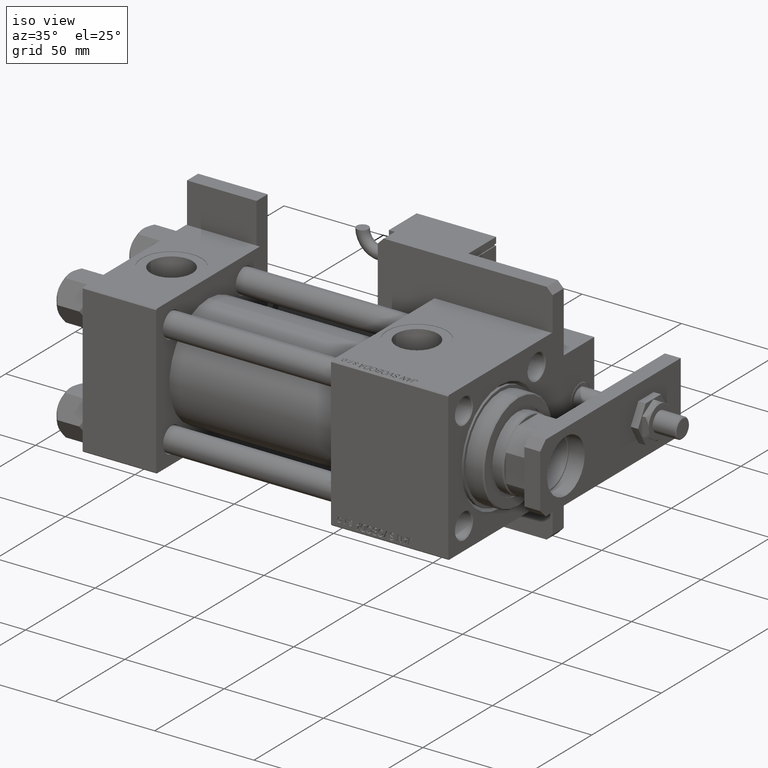
[diagram: clean part render]
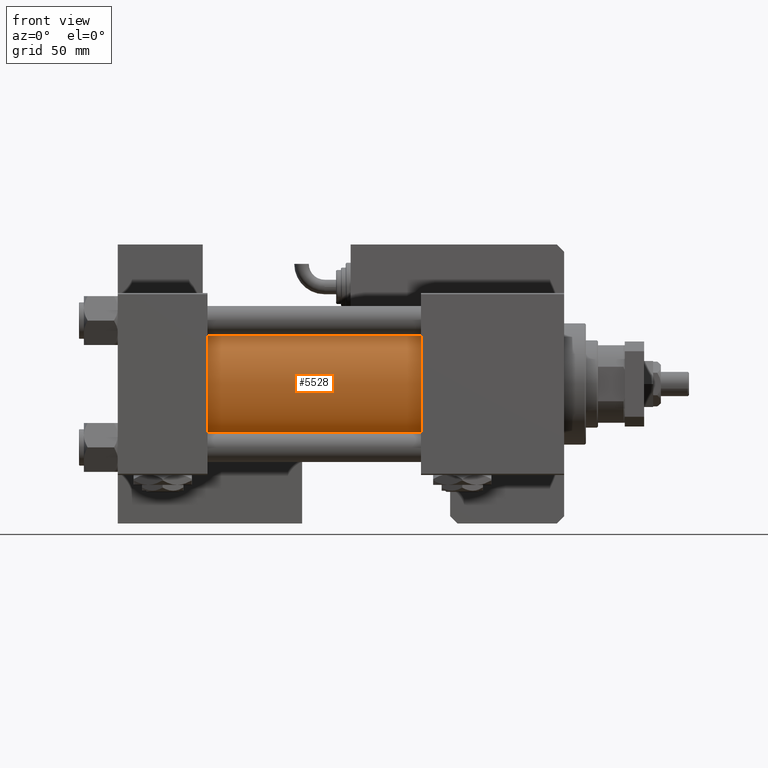
[diagram: tour spotlight — one face highlighted and labeled with its STEP entity id]
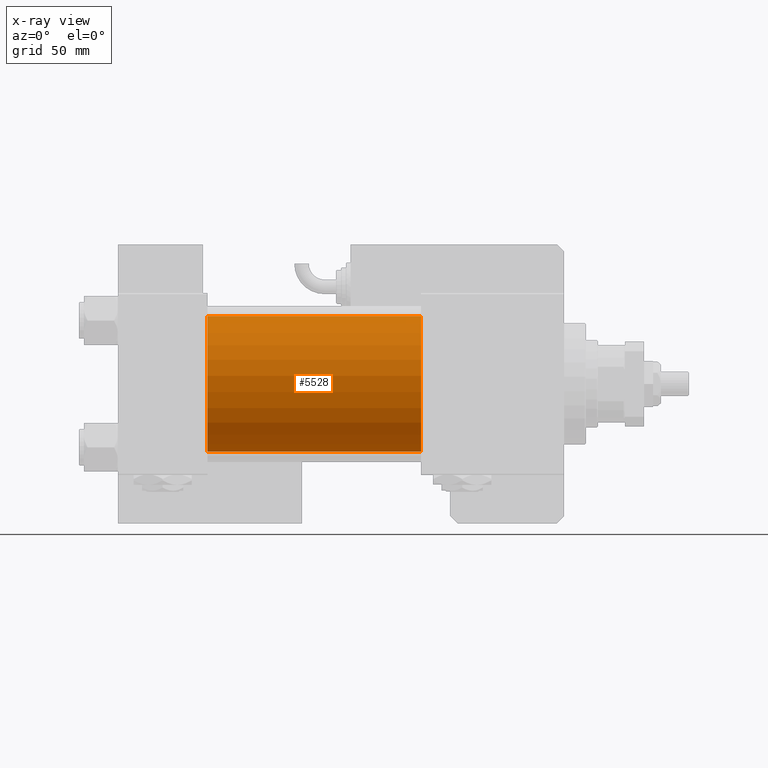
[diagram: x-ray of the same camera — body ghosted, this tour face saturated]
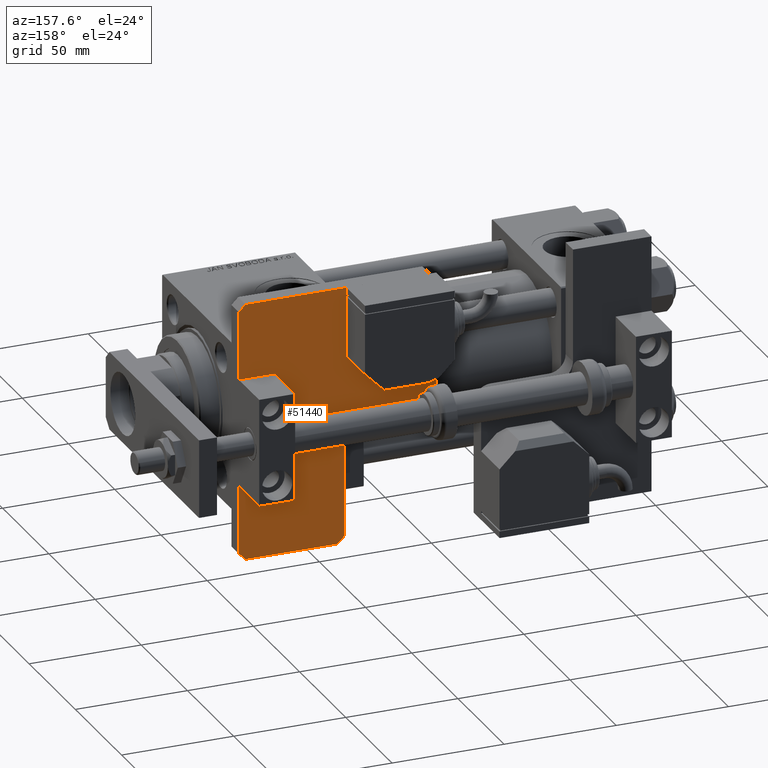
[diagram: tour spotlight — one face highlighted and labeled with its STEP entity id]
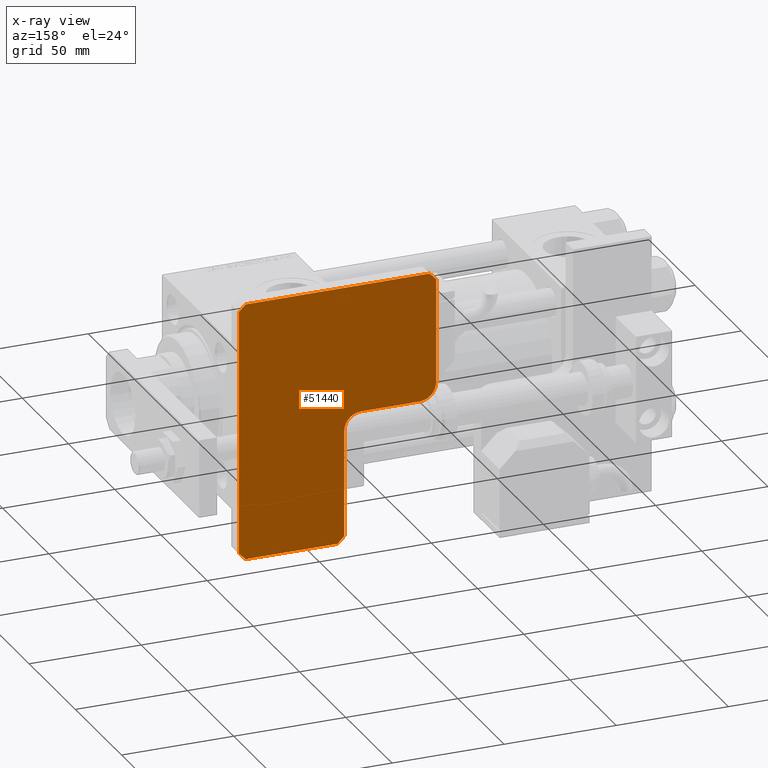
[diagram: x-ray of the same camera — body ghosted, this tour face saturated]
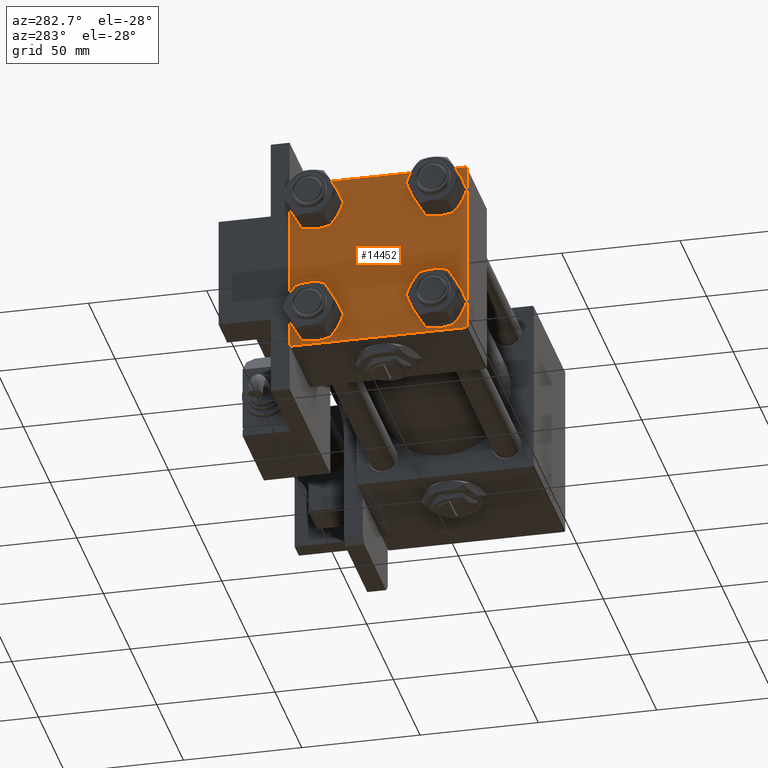
[diagram: tour spotlight — one face highlighted and labeled with its STEP entity id]
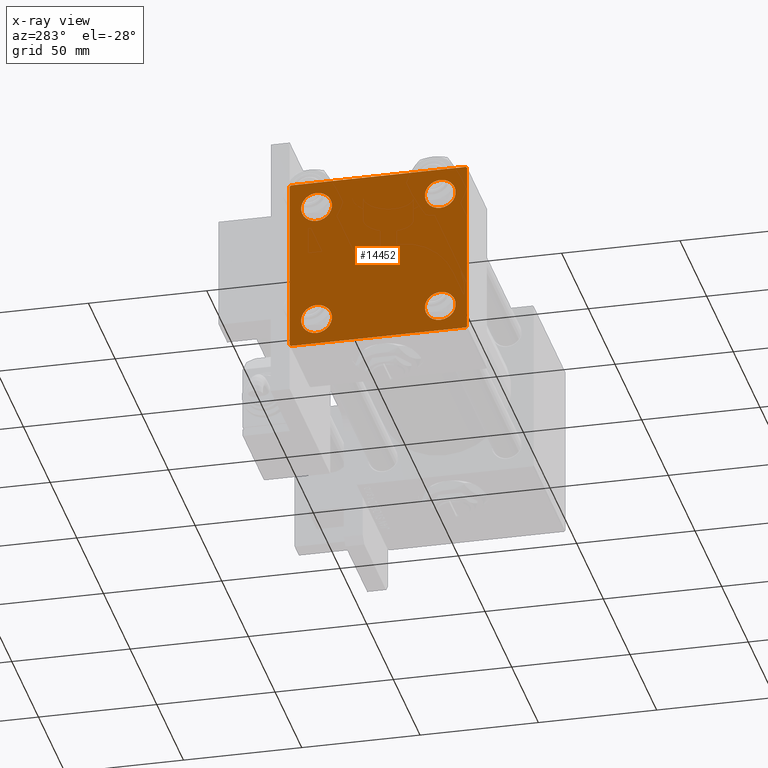
[diagram: x-ray of the same camera — body ghosted, this tour face saturated]
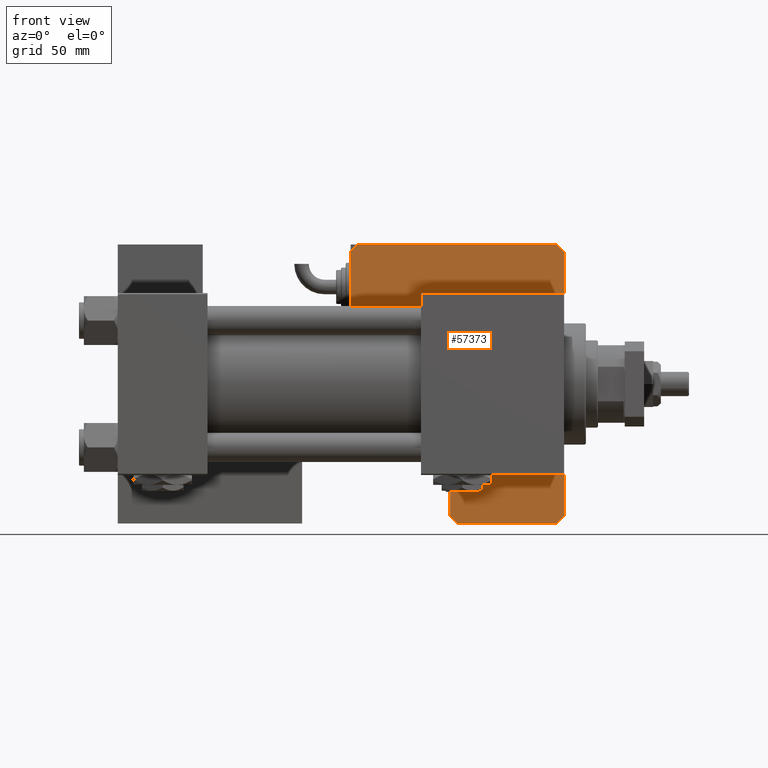
[diagram: tour spotlight — one face highlighted and labeled with its STEP entity id]
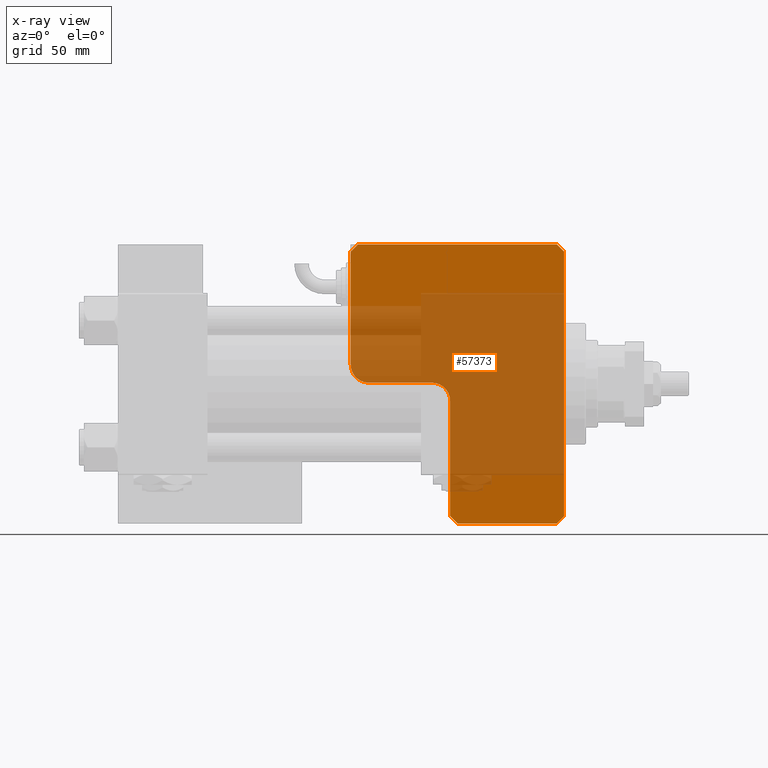
[diagram: x-ray of the same camera — body ghosted, this tour face saturated]
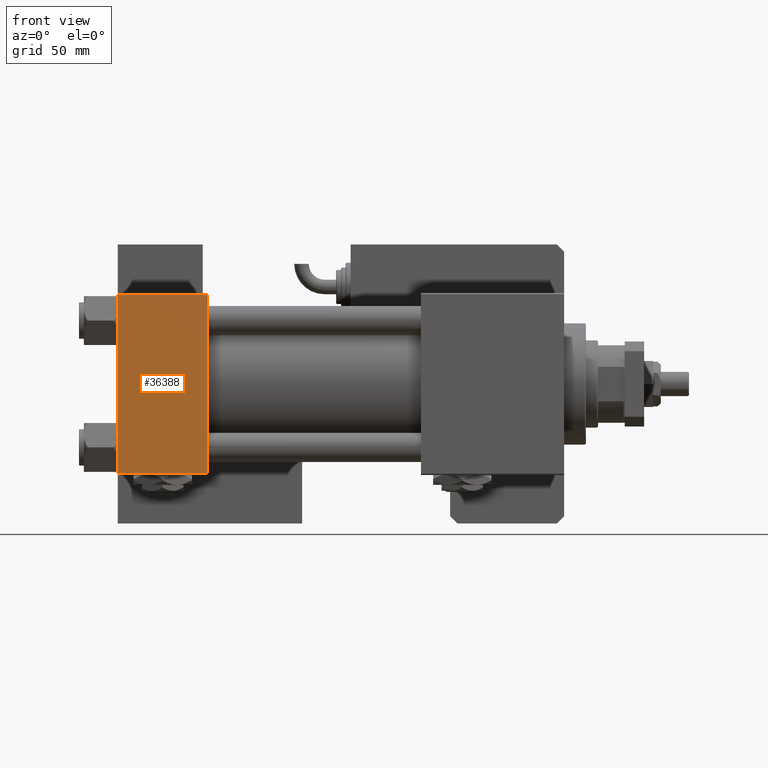
[diagram: tour spotlight — one face highlighted and labeled with its STEP entity id]
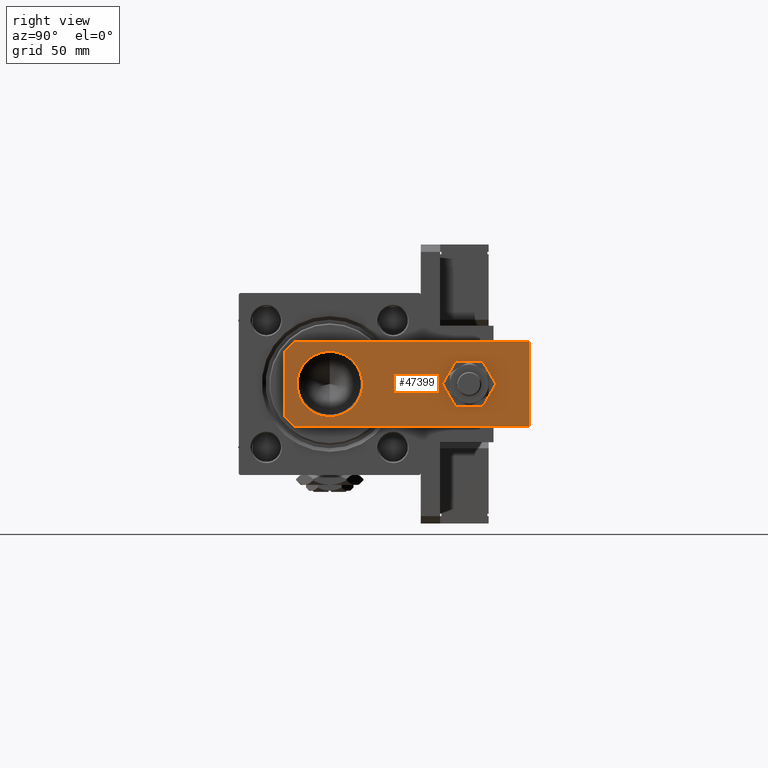
[diagram: tour spotlight — one face highlighted and labeled with its STEP entity id]
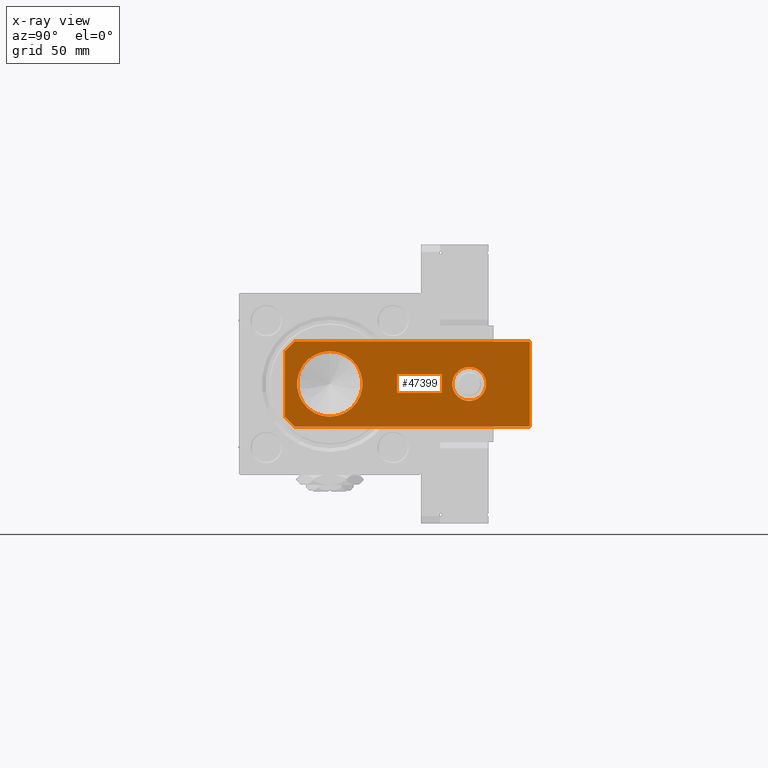
[diagram: x-ray of the same camera — body ghosted, this tour face saturated]
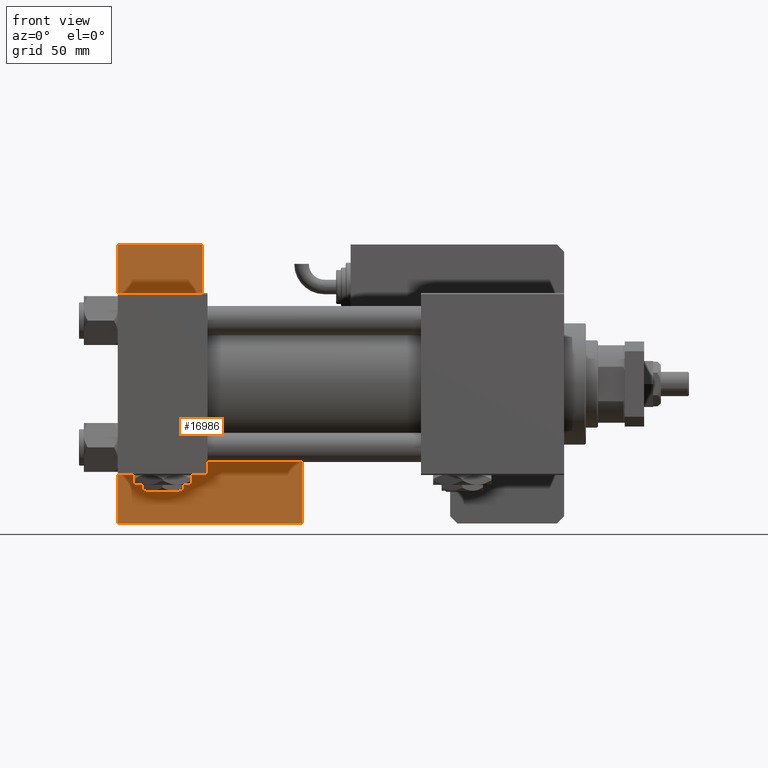
[diagram: tour spotlight — one face highlighted and labeled with its STEP entity id]
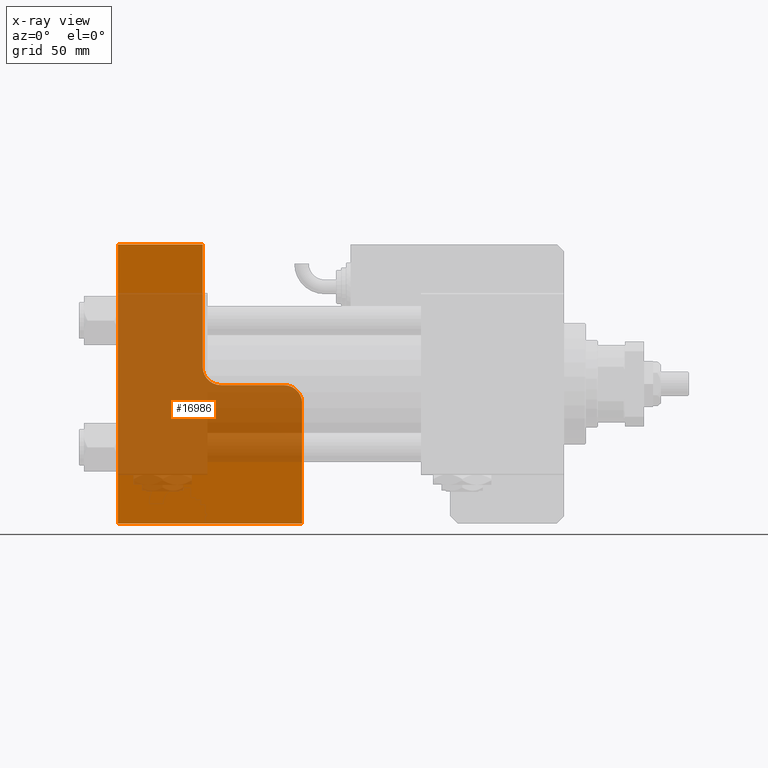
[diagram: x-ray of the same camera — body ghosted, this tour face saturated]
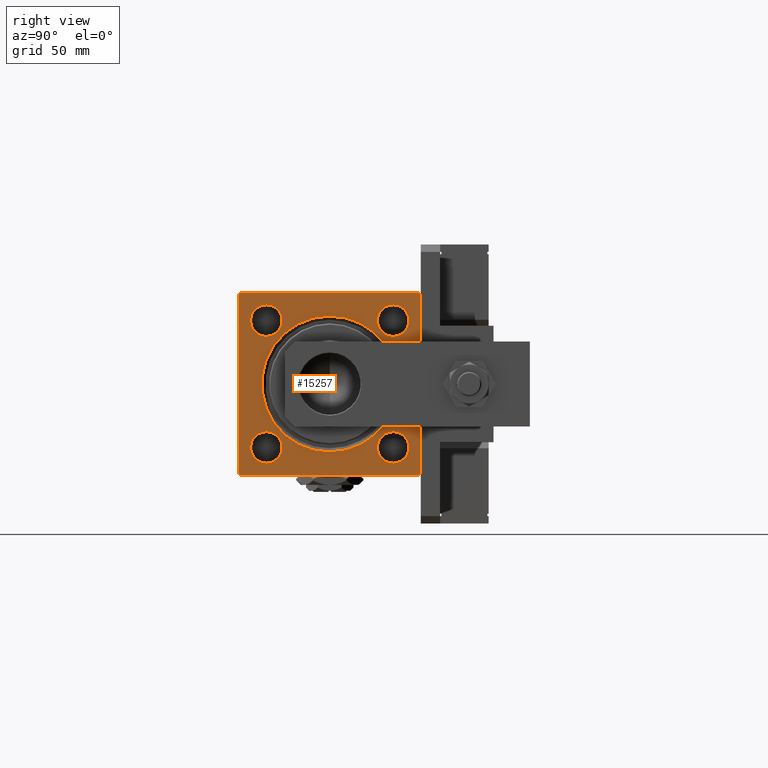
[diagram: tour spotlight — one face highlighted and labeled with its STEP entity id]
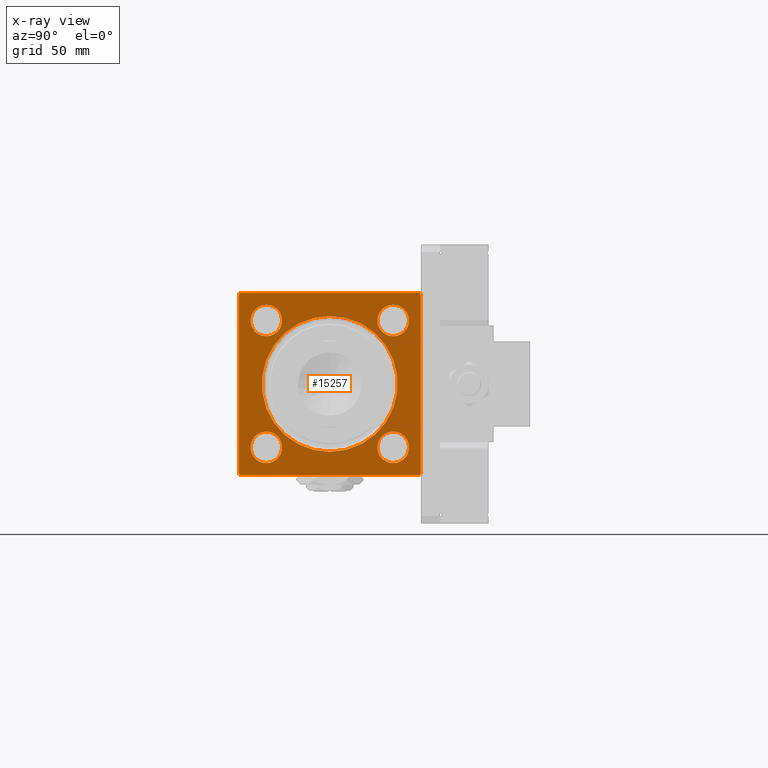
[diagram: x-ray of the same camera — body ghosted, this tour face saturated]
A machine part: a face-by-face anatomy tour. The part has 1477 B-rep faces; the first image is the clean iso view, then the 8 largest visible faces are spotlighted one at a time (largest first), each with its STEP entity span.

Face 1 — front view, entity #5528. An x-ray twin of the same camera follows (body ghosted, this face saturated) — the face is partly hidden behind the body. In plain terms, the highlighted cylindrical surface (partial cylindrical patch) has radius 28 mm, axis along (-1, -0, -0).
Definition (entity closure, byte-faithful):
#185 = VERTEX_POINT ( 'NONE', #4745 ) ;
#2005 = VECTOR ( 'NONE', #43852, 1000.000000000000000 ) ;
#2860 = CARTESIAN_POINT ( 'NONE',  ( 125.0000000000000000, 8.269258236473784371E-16, -28.00000000000000000 ) ) ;
#4724 = AXIS2_PLACEMENT_3D ( 'NONE', #44964, #4794, #22372 ) ;
#4745 = CARTESIAN_POINT ( 'NONE',  ( 37.00000000000000711, 8.269258236473784371E-16, -28.00000000000000000 ) ) ;
#4794 = DIRECTION ( 'NONE',  ( 1.000000000000000000, -0.000000000000000000, 0.000000000000000000 ) ) ;
#5528 = ADVANCED_FACE ( 'NONE', ( #51389 ), #14480, .T. ) ;
#7820 = ORIENTED_EDGE ( 'NONE', *, *, #55408, .T. ) ;
#9227 = LINE ( 'NONE', #25934, #2005 ) ;
#11243 = CARTESIAN_POINT ( 'NONE',  ( 125.0000000000000000, -2.602085213965210642E-15, 0.000000000000000000 ) ) ;
#13383 = DIRECTION ( 'NONE',  ( 0.000000000000000000, 0.000000000000000000, -1.000000000000000000 ) ) ;
#14480 = CYLINDRICAL_SURFACE ( 'NONE', #25016, 28.00000000000000000 ) ;
#15224 = CARTESIAN_POINT ( 'NONE',  ( 37.00000000000000711, -2.602085213965210642E-15, 28.00000000000000000 ) ) ;
#15694 = ORIENTED_EDGE ( 'NONE', *, *, #27832, .F. ) ;
#19517 = CIRCLE ( 'NONE', #47653, 28.00000000000000000 ) ;
#22372 = DIRECTION ( 'NONE',  ( 0.000000000000000000, 0.000000000000000000, 1.000000000000000000 ) ) ;
#22388 = EDGE_CURVE ( 'NONE', #26710, #42763, #19517, .T. ) ;
#25016 = AXIS2_PLACEMENT_3D ( 'NONE', #11243, #29121, #47027 ) ;
#25934 = CARTESIAN_POINT ( 'NONE',  ( 125.0000000000000000, 8.269258236473784371E-16, -28.00000000000000000 ) ) ;
#26337 = VERTEX_POINT ( 'NONE', #15224 ) ;
#26710 = VERTEX_POINT ( 'NONE', #40611 ) ;
#27342 = ORIENTED_EDGE ( 'NONE', *, *, #22388, .F. ) ;
#27832 = EDGE_CURVE ( 'NONE', #42763, #185, #9227, .T. ) ;
#29121 = DIRECTION ( 'NONE',  ( -1.000000000000000000, -0.000000000000000000, -0.000000000000000000 ) ) ;
#32742 = EDGE_CURVE ( 'NONE', #26710, #26337, #52205, .T. ) ;
#33860 = VECTOR ( 'NONE', #39025, 1000.000000000000000 ) ;
#39025 = DIRECTION ( 'NONE',  ( -1.000000000000000000, -0.000000000000000000, -0.000000000000000000 ) ) ;
#40611 = CARTESIAN_POINT ( 'NONE',  ( 125.0000000000000000, -2.602085213965210642E-15, 28.00000000000000000 ) ) ;
#42016 = ORIENTED_EDGE ( 'NONE', *, *, #32742, .T. ) ;
#42763 = VERTEX_POINT ( 'NONE', #2860 ) ;
#43609 = DIRECTION ( 'NONE',  ( 1.000000000000000000, 0.000000000000000000, 0.000000000000000000 ) ) ;
#43710 = CARTESIAN_POINT ( 'NONE',  ( 125.0000000000000000, -2.602085213965210642E-15, 28.00000000000000000 ) ) ;
#43852 = DIRECTION ( 'NONE',  ( -1.000000000000000000, -0.000000000000000000, -0.000000000000000000 ) ) ;
#43897 = CARTESIAN_POINT ( 'NONE',  ( 125.0000000000000000, -2.602085213965210642E-15, 0.000000000000000000 ) ) ;
#44964 = CARTESIAN_POINT ( 'NONE',  ( 37.00000000000000711, -2.602085213965210642E-15, 0.000000000000000000 ) ) ;
#44989 = CIRCLE ( 'NONE', #4724, 28.00000000000000000 ) ;
#45217 = EDGE_LOOP ( 'NONE', ( #15694, #27342, #42016, #7820 ) ) ;
#47027 = DIRECTION ( 'NONE',  ( 0.000000000000000000, 0.000000000000000000, 1.000000000000000000 ) ) ;
#47653 = AXIS2_PLACEMENT_3D ( 'NONE', #43897, #43609, #13383 ) ;
#51389 = FACE_OUTER_BOUND ( 'NONE', #45217, .T. ) ;
#52205 = LINE ( 'NONE', #43710, #33860 ) ;
#55408 = EDGE_CURVE ( 'NONE', #26337, #185, #44989, .T. ) ;

Face 2 — auxiliary view, entity #51440. An x-ray twin of the same camera follows (body ghosted, this face saturated) — the face is partly hidden behind the body. In plain terms, the highlighted planar face has unit normal (0, 1, 0).
Definition (entity closure, byte-faithful):
#282 = CARTESIAN_POINT ( 'NONE',  ( 0.000000000000000000, 3.000000000000002665, 8.000000000000000000 ) ) ;
#766 = CARTESIAN_POINT ( 'NONE',  ( 56.99999999999999289, 54.49999999999998579, 8.000000000000000000 ) ) ;
#850 = EDGE_CURVE ( 'NONE', #54334, #11071, #41793, .T. ) ;
#960 = DIRECTION ( 'NONE',  ( -0.000000000000000000, 0.000000000000000000, -1.000000000000000000 ) ) ;
#1000 = VERTEX_POINT ( 'NONE', #11545 ) ;
#1476 = CARTESIAN_POINT ( 'NONE',  ( 55.99999999999947420, -55.99999999999999289, 8.000000000000000000 ) ) ;
#1549 = EDGE_CURVE ( 'NONE', #51930, #41716, #39645, .T. ) ;
#1852 = CARTESIAN_POINT ( 'NONE',  ( 0.000000000000000000, 0.000000000000000000, 8.000000000000000000 ) ) ;
#2943 = EDGE_CURVE ( 'NONE', #14834, #16403, #25161, .T. ) ;
#3162 = VERTEX_POINT ( 'NONE', #45364 ) ;
#3177 = ORIENTED_EDGE ( 'NONE', *, *, #21369, .T. ) ;
#3814 = VECTOR ( 'NONE', #25133, 1000.000000000000114 ) ;
#4239 = LINE ( 'NONE', #15772, #3814 ) ;
#5576 = DIRECTION ( 'NONE',  ( 0.7071067811865507924, 0.7071067811865441310, -0.000000000000000000 ) ) ;
#5634 = DIRECTION ( 'NONE',  ( 1.000000000000000000, 0.000000000000000000, 0.000000000000000000 ) ) ;
#6024 = ORIENTED_EDGE ( 'NONE', *, *, #53512, .T. ) ;
#6832 = ORIENTED_EDGE ( 'NONE', *, *, #44657, .T. ) ;
#7095 = CARTESIAN_POINT ( 'NONE',  ( 0.000000000000000000, 88.00000000000000000, 8.000000000000000000 ) ) ;
#8643 = CARTESIAN_POINT ( 'NONE',  ( 49.49999999999999289, 80.49999999999998579, 8.000000000000000000 ) ) ;
#9099 = ORIENTED_EDGE ( 'NONE', *, *, #37635, .T. ) ;
#9127 = DIRECTION ( 'NONE',  ( 0.7071067811865441310, -0.7071067811865507924, -0.000000000000000000 ) ) ;
#9957 = AXIS2_PLACEMENT_3D ( 'NONE', #8643, #26223, #18296 ) ;
#9961 = LINE ( 'NONE', #1476, #48630 ) ;
#10342 = FACE_OUTER_BOUND ( 'NONE', #48288, .T. ) ;
#10346 = AXIS2_PLACEMENT_3D ( 'NONE', #50770, #960, #5634 ) ;
#11071 = VERTEX_POINT ( 'NONE', #31269 ) ;
#11370 = DIRECTION ( 'NONE',  ( -1.000000000000000000, 0.000000000000000000, 0.000000000000000000 ) ) ;
#11545 = CARTESIAN_POINT ( 'NONE',  ( 111.9999999999999858, 0.000000000000000000, 8.000000000000000000 ) ) ;
#11981 = CARTESIAN_POINT ( 'NONE',  ( 114.9999999999999858, 46.99999999999998579, 8.000000000000000000 ) ) ;
#12064 = ORIENTED_EDGE ( 'NONE', *, *, #56294, .T. ) ;
#14313 = VECTOR ( 'NONE', #56423, 1000.000000000000114 ) ;
#14440 = VERTEX_POINT ( 'NONE', #41496 ) ;
#14740 = LINE ( 'NONE', #32603, #28794 ) ;
#14828 = VECTOR ( 'NONE', #46048, 1000.000000000000000 ) ;
#14834 = VERTEX_POINT ( 'NONE', #52500 ) ;
#15772 = CARTESIAN_POINT ( 'NONE',  ( 79.50000000000051159, 79.49999999999977263, 8.000000000000000000 ) ) ;
#16403 = VERTEX_POINT ( 'NONE', #55634 ) ;
#16571 = VERTEX_POINT ( 'NONE', #766 ) ;
#16855 = CARTESIAN_POINT ( 'NONE',  ( 56.99999999999999289, 46.99999999999998579, 8.000000000000000000 ) ) ;
#18296 = DIRECTION ( 'NONE',  ( 1.000000000000000000, 0.000000000000000000, 0.000000000000000000 ) ) ;
#18776 = CARTESIAN_POINT ( 'NONE',  ( 0.000000000000000000, 0.000000000000000000, 8.000000000000000000 ) ) ;
#19060 = ORIENTED_EDGE ( 'NONE', *, *, #850, .T. ) ;
#19247 = CARTESIAN_POINT ( 'NONE',  ( 2.999999999999975131, 0.000000000000000000, 8.000000000000000000 ) ) ;
#19710 = LINE ( 'NONE', #7095, #36879 ) ;
#19986 = CARTESIAN_POINT ( 'NONE',  ( 3.000000000000002665, 88.00000000000000000, 8.000000000000000000 ) ) ;
#20439 = CARTESIAN_POINT ( 'NONE',  ( 56.99999999999999289, 88.00000000000000000, 8.000000000000000000 ) ) ;
#20652 = CARTESIAN_POINT ( 'NONE',  ( 56.99999999999999289, 80.49999999999997158, 8.000000000000000000 ) ) ;
#21369 = EDGE_CURVE ( 'NONE', #3162, #14440, #14740, .T. ) ;
#21650 = EDGE_CURVE ( 'NONE', #41716, #1000, #27269, .T. ) ;
#25044 = CARTESIAN_POINT ( 'NONE',  ( -42.50000000000000711, 42.50000000000040501, 8.000000000000000000 ) ) ;
#25133 = DIRECTION ( 'NONE',  ( -0.7071067811865441310, 0.7071067811865507924, -0.000000000000000000 ) ) ;
#25161 = LINE ( 'NONE', #11981, #25926 ) ;
#25625 = ORIENTED_EDGE ( 'NONE', *, *, #54952, .T. ) ;
#25926 = VECTOR ( 'NONE', #37805, 1000.000000000000000 ) ;
#26223 = DIRECTION ( 'NONE',  ( 0.000000000000000000, -0.000000000000000000, 1.000000000000000000 ) ) ;
#26453 = VERTEX_POINT ( 'NONE', #40684 ) ;
#27074 = EDGE_CURVE ( 'NONE', #16403, #16571, #32811, .T. ) ;
#27146 = VERTEX_POINT ( 'NONE', #19986 ) ;
#27269 = LINE ( 'NONE', #18776, #14828 ) ;
#28051 = ORIENTED_EDGE ( 'NONE', *, *, #1549, .T. ) ;
#28791 = DIRECTION ( 'NONE',  ( 0.000000000000000000, -0.000000000000000000, 1.000000000000000000 ) ) ;
#28794 = VECTOR ( 'NONE', #50496, 1000.000000000000000 ) ;
#29961 = VECTOR ( 'NONE', #11370, 1000.000000000000000 ) ;
#31269 = CARTESIAN_POINT ( 'NONE',  ( 49.49999999999999289, 88.00000000000000000, 8.000000000000000000 ) ) ;
#32603 = CARTESIAN_POINT ( 'NONE',  ( 114.9999999999999858, 0.000000000000000000, 8.000000000000000000 ) ) ;
#32811 = CIRCLE ( 'NONE', #10346, 7.500000000000007105 ) ;
#33551 = AXIS2_PLACEMENT_3D ( 'NONE', #1852, #28791, #37326 ) ;
#35715 = EDGE_CURVE ( 'NONE', #27146, #26453, #56992, .T. ) ;
#36879 = VECTOR ( 'NONE', #37613, 1000.000000000000000 ) ;
#37020 = PLANE ( 'NONE',  #33551 ) ;
#37326 = DIRECTION ( 'NONE',  ( 1.000000000000000000, 0.000000000000000000, -0.000000000000000000 ) ) ;
#37613 = DIRECTION ( 'NONE',  ( 0.000000000000000000, -1.000000000000000000, 0.000000000000000000 ) ) ;
#37635 = EDGE_CURVE ( 'NONE', #26453, #51930, #19710, .T. ) ;
#37805 = DIRECTION ( 'NONE',  ( -1.000000000000000000, 0.000000000000000000, 0.000000000000000000 ) ) ;
#39645 = LINE ( 'NONE', #57801, #57752 ) ;
#39768 = ORIENTED_EDGE ( 'NONE', *, *, #35715, .T. ) ;
#40551 = ORIENTED_EDGE ( 'NONE', *, *, #27074, .T. ) ;
#40684 = CARTESIAN_POINT ( 'NONE',  ( 0.000000000000000000, 85.00000000000001421, 8.000000000000000000 ) ) ;
#41496 = CARTESIAN_POINT ( 'NONE',  ( 114.9999999999999858, 43.99999999999998579, 8.000000000000000000 ) ) ;
#41716 = VERTEX_POINT ( 'NONE', #19247 ) ;
#41793 = CIRCLE ( 'NONE', #9957, 7.500000000000000000 ) ;
#42987 = DIRECTION ( 'NONE',  ( 0.000000000000000000, 1.000000000000000000, 0.000000000000000000 ) ) ;
#44657 = EDGE_CURVE ( 'NONE', #16571, #54334, #57018, .T. ) ;
#45364 = CARTESIAN_POINT ( 'NONE',  ( 114.9999999999999858, 2.999999999999975131, 8.000000000000000000 ) ) ;
#46048 = DIRECTION ( 'NONE',  ( 1.000000000000000000, 0.000000000000000000, 0.000000000000000000 ) ) ;
#46555 = LINE ( 'NONE', #20439, #29961 ) ;
#48288 = EDGE_LOOP ( 'NONE', ( #25625, #39768, #9099, #28051, #51226, #6024, #3177, #12064, #56959, #40551, #6832, #19060 ) ) ;
#48630 = VECTOR ( 'NONE', #5576, 1000.000000000000114 ) ;
#50202 = VECTOR ( 'NONE', #42987, 1000.000000000000000 ) ;
#50496 = DIRECTION ( 'NONE',  ( 0.000000000000000000, 1.000000000000000000, 0.000000000000000000 ) ) ;
#50770 = CARTESIAN_POINT ( 'NONE',  ( 64.50000000000000000, 54.49999999999998579, 8.000000000000000000 ) ) ;
#51226 = ORIENTED_EDGE ( 'NONE', *, *, #21650, .T. ) ;
#51440 = ADVANCED_FACE ( 'NONE', ( #10342 ), #37020, .T. ) ;
#51930 = VERTEX_POINT ( 'NONE', #282 ) ;
#52500 = CARTESIAN_POINT ( 'NONE',  ( 112.0000000000000142, 46.99999999999998579, 8.000000000000000000 ) ) ;
#53512 = EDGE_CURVE ( 'NONE', #1000, #3162, #9961, .T. ) ;
#54334 = VERTEX_POINT ( 'NONE', #20652 ) ;
#54952 = EDGE_CURVE ( 'NONE', #11071, #27146, #46555, .T. ) ;
#55634 = CARTESIAN_POINT ( 'NONE',  ( 64.50000000000000000, 46.99999999999998579, 8.000000000000000000 ) ) ;
#56294 = EDGE_CURVE ( 'NONE', #14440, #14834, #4239, .T. ) ;
#56423 = DIRECTION ( 'NONE',  ( -0.7071067811865507924, -0.7071067811865441310, -0.000000000000000000 ) ) ;
#56959 = ORIENTED_EDGE ( 'NONE', *, *, #2943, .T. ) ;
#56992 = LINE ( 'NONE', #25044, #14313 ) ;
#57018 = LINE ( 'NONE', #16855, #50202 ) ;
#57752 = VECTOR ( 'NONE', #9127, 1000.000000000000114 ) ;
#57801 = CARTESIAN_POINT ( 'NONE',  ( 1.500000000000001332, 1.499999999999987566, 8.000000000000000000 ) ) ;

Face 3 — auxiliary view, entity #14452. An x-ray twin of the same camera follows (body ghosted, this face saturated) — the face is partly hidden behind the body. In plain terms, the highlighted planar face has unit normal (-1, 0, 0).
Definition (entity closure, byte-faithful):
#683 = VECTOR ( 'NONE', #50022, 1000.000000000000114 ) ;
#1596 = DIRECTION ( 'NONE',  ( 1.000000000000000000, -0.000000000000000000, 0.000000000000000000 ) ) ;
#2729 = VERTEX_POINT ( 'NONE', #57178 ) ;
#2833 = CIRCLE ( 'NONE', #21494, 6.500000000000015987 ) ;
#3370 = CARTESIAN_POINT ( 'NONE',  ( 0.000000000000000000, 37.49999999999999289, -37.50000000000000000 ) ) ;
#3371 = VERTEX_POINT ( 'NONE', #12484 ) ;
#3559 = ORIENTED_EDGE ( 'NONE', *, *, #3678, .T. ) ;
#3678 = EDGE_CURVE ( 'NONE', #3772, #22277, #5400, .T. ) ;
#3702 = DIRECTION ( 'NONE',  ( 1.000000000000000000, -0.000000000000000000, 0.000000000000000000 ) ) ;
#3724 = CARTESIAN_POINT ( 'NONE',  ( 0.000000000000000000, 26.14999999999999858, -19.64999999999998792 ) ) ;
#3772 = VERTEX_POINT ( 'NONE', #51989 ) ;
#3791 = VERTEX_POINT ( 'NONE', #21772 ) ;
#3904 = CARTESIAN_POINT ( 'NONE',  ( 0.000000000000000000, 26.14999999999999858, 32.65000000000002700 ) ) ;
#5400 = CIRCLE ( 'NONE', #18490, 6.500000000000015987 ) ;
#5694 = DIRECTION ( 'NONE',  ( 1.000000000000000000, -0.000000000000000000, 0.000000000000000000 ) ) ;
#5750 = DIRECTION ( 'NONE',  ( 1.000000000000000000, -0.000000000000000000, 0.000000000000000000 ) ) ;
#5782 = CARTESIAN_POINT ( 'NONE',  ( 0.000000000000000000, 37.49999999999999289, 37.50000000000000000 ) ) ;
#6287 = CARTESIAN_POINT ( 'NONE',  ( 0.000000000000000000, 0.000000000000000000, 0.000000000000000000 ) ) ;
#7463 = VERTEX_POINT ( 'NONE', #8265 ) ;
#7763 = VERTEX_POINT ( 'NONE', #40392 ) ;
#8265 = CARTESIAN_POINT ( 'NONE',  ( 0.000000000000000000, 26.14999999999999858, 19.64999999999998437 ) ) ;
#8393 = DIRECTION ( 'NONE',  ( 0.000000000000000000, -1.000000000000000000, -9.251858538542971581E-17 ) ) ;
#8639 = VERTEX_POINT ( 'NONE', #31361 ) ;
#8665 = CARTESIAN_POINT ( 'NONE',  ( 0.000000000000000000, 26.14999999999999858, -26.15000000000000213 ) ) ;
#9100 = EDGE_CURVE ( 'NONE', #3371, #51455, #41121, .T. ) ;
#10098 = FACE_BOUND ( 'NONE', #32233, .T. ) ;
#10162 = VECTOR ( 'NONE', #8393, 1000.000000000000000 ) ;
#10322 = CARTESIAN_POINT ( 'NONE',  ( 0.000000000000000000, 37.24999999999998579, -37.24999999999998579 ) ) ;
#11252 = CARTESIAN_POINT ( 'NONE',  ( 0.000000000000000000, 26.14999999999999858, 26.15000000000000213 ) ) ;
#11330 = DIRECTION ( 'NONE',  ( 0.000000000000000000, -0.7071067811865524577, 0.7071067811865426878 ) ) ;
#11640 = EDGE_CURVE ( 'NONE', #16469, #8639, #2833, .T. ) ;
#12232 = CARTESIAN_POINT ( 'NONE',  ( 0.000000000000000000, -26.14999999999999147, -32.65000000000002700 ) ) ;
#12440 = DIRECTION ( 'NONE',  ( 1.000000000000000000, -0.000000000000000000, 0.000000000000000000 ) ) ;
#12484 = CARTESIAN_POINT ( 'NONE',  ( 0.000000000000000000, 37.49999999999999289, -36.99999999999998579 ) ) ;
#13056 = CARTESIAN_POINT ( 'NONE',  ( 0.000000000000000000, 37.49999999999999289, 37.00000000000000000 ) ) ;
#13178 = EDGE_LOOP ( 'NONE', ( #54364, #47149 ) ) ;
#14184 = EDGE_CURVE ( 'NONE', #14370, #3371, #38018, .T. ) ;
#14370 = VERTEX_POINT ( 'NONE', #13056 ) ;
#14452 = ADVANCED_FACE ( 'NONE', ( #37073, #42367, #10098, #28554, #51411 ), #46454, .T. ) ;
#14776 = DIRECTION ( 'NONE',  ( 0.000000000000000000, 0.000000000000000000, 1.000000000000000000 ) ) ;
#16141 = CARTESIAN_POINT ( 'NONE',  ( 0.000000000000000000, -37.50000000000000711, 37.49999999999999289 ) ) ;
#16469 = VERTEX_POINT ( 'NONE', #3724 ) ;
#16835 = CARTESIAN_POINT ( 'NONE',  ( 0.000000000000000000, -26.14999999999999147, 26.15000000000000924 ) ) ;
#17569 = EDGE_LOOP ( 'NONE', ( #56593, #55580, #38563, #53108, #23815, #19121, #18975, #49118 ) ) ;
#18490 = AXIS2_PLACEMENT_3D ( 'NONE', #56965, #56675, #21187 ) ;
#18975 = ORIENTED_EDGE ( 'NONE', *, *, #52167, .F. ) ;
#19121 = ORIENTED_EDGE ( 'NONE', *, *, #43975, .T. ) ;
#19616 = EDGE_CURVE ( 'NONE', #22277, #3772, #30644, .T. ) ;
#19990 = VERTEX_POINT ( 'NONE', #42335 ) ;
#20013 = CARTESIAN_POINT ( 'NONE',  ( 0.000000000000000000, -37.50000000000000000, -37.00000000000003553 ) ) ;
#20402 = CARTESIAN_POINT ( 'NONE',  ( 0.000000000000000000, -37.24999999999975842, -37.25000000000027001 ) ) ;
#21187 = DIRECTION ( 'NONE',  ( 0.000000000000000000, 0.000000000000000000, 1.000000000000000000 ) ) ;
#21494 = AXIS2_PLACEMENT_3D ( 'NONE', #43757, #22022, #30539 ) ;
#21584 = LINE ( 'NONE', #30968, #10162 ) ;
#21623 = VECTOR ( 'NONE', #33022, 1000.000000000000000 ) ;
#21772 = CARTESIAN_POINT ( 'NONE',  ( 0.000000000000000000, -37.00000000000000711, 37.49999999999999289 ) ) ;
#22022 = DIRECTION ( 'NONE',  ( 1.000000000000000000, -0.000000000000000000, 0.000000000000000000 ) ) ;
#22223 = ORIENTED_EDGE ( 'NONE', *, *, #26079, .T. ) ;
#22277 = VERTEX_POINT ( 'NONE', #12232 ) ;
#23815 = ORIENTED_EDGE ( 'NONE', *, *, #48464, .F. ) ;
#24150 = DIRECTION ( 'NONE',  ( -1.000000000000000000, 0.000000000000000000, -0.000000000000000000 ) ) ;
#24761 = AXIS2_PLACEMENT_3D ( 'NONE', #30053, #43543, #25630 ) ;
#25318 = AXIS2_PLACEMENT_3D ( 'NONE', #16835, #12440, #48198 ) ;
#25630 = DIRECTION ( 'NONE',  ( 0.000000000000000000, 0.000000000000000000, 1.000000000000000000 ) ) ;
#26079 = EDGE_CURVE ( 'NONE', #56981, #2729, #57093, .T. ) ;
#26271 = CIRCLE ( 'NONE', #25318, 6.500000000000023093 ) ;
#28527 = CIRCLE ( 'NONE', #24761, 6.500000000000023093 ) ;
#28554 = FACE_BOUND ( 'NONE', #13178, .T. ) ;
#28566 = EDGE_CURVE ( 'NONE', #8639, #16469, #44133, .T. ) ;
#28591 = CARTESIAN_POINT ( 'NONE',  ( 0.000000000000000000, -26.14999999999999147, -26.15000000000000924 ) ) ;
#29676 = CIRCLE ( 'NONE', #56841, 6.500000000000023093 ) ;
#30053 = CARTESIAN_POINT ( 'NONE',  ( 0.000000000000000000, 26.14999999999999858, 26.15000000000000213 ) ) ;
#30370 = DIRECTION ( 'NONE',  ( 0.000000000000000000, 0.000000000000000000, 1.000000000000000000 ) ) ;
#30539 = DIRECTION ( 'NONE',  ( 0.000000000000000000, 0.000000000000000000, 1.000000000000000000 ) ) ;
#30644 = CIRCLE ( 'NONE', #35340, 6.500000000000015987 ) ;
#30968 = CARTESIAN_POINT ( 'NONE',  ( 0.000000000000000000, 37.49999999999999289, 37.50000000000000000 ) ) ;
#31075 = EDGE_CURVE ( 'NONE', #51455, #7763, #47352, .T. ) ;
#31084 = EDGE_CURVE ( 'NONE', #2729, #56981, #26271, .T. ) ;
#31361 = CARTESIAN_POINT ( 'NONE',  ( 0.000000000000000000, 26.14999999999999858, -32.65000000000001990 ) ) ;
#31452 = EDGE_LOOP ( 'NONE', ( #3559, #41222 ) ) ;
#32233 = EDGE_LOOP ( 'NONE', ( #39696, #44100 ) ) ;
#32417 = CARTESIAN_POINT ( 'NONE',  ( 0.000000000000000000, 37.24999999999999289, 37.24999999999999289 ) ) ;
#33022 = DIRECTION ( 'NONE',  ( 0.000000000000000000, 0.000000000000000000, -1.000000000000000000 ) ) ;
#33293 = LINE ( 'NONE', #20402, #33421 ) ;
#33421 = VECTOR ( 'NONE', #11330, 1000.000000000000000 ) ;
#33435 = CARTESIAN_POINT ( 'NONE',  ( 0.000000000000000000, -37.50000000000000711, 36.99999999999999289 ) ) ;
#33773 = VECTOR ( 'NONE', #51737, 1000.000000000000000 ) ;
#34019 = DIRECTION ( 'NONE',  ( 0.000000000000000000, 9.251858538542971581E-17, -1.000000000000000000 ) ) ;
#34129 = LINE ( 'NONE', #51717, #43670 ) ;
#35340 = AXIS2_PLACEMENT_3D ( 'NONE', #28591, #5750, #50586 ) ;
#37073 = FACE_BOUND ( 'NONE', #43955, .T. ) ;
#38018 = LINE ( 'NONE', #5782, #21623 ) ;
#38314 = VECTOR ( 'NONE', #50771, 1000.000000000000114 ) ;
#38563 = ORIENTED_EDGE ( 'NONE', *, *, #31075, .T. ) ;
#39316 = AXIS2_PLACEMENT_3D ( 'NONE', #54928, #5694, #14776 ) ;
#39323 = EDGE_CURVE ( 'NONE', #7463, #49401, #28527, .T. ) ;
#39696 = ORIENTED_EDGE ( 'NONE', *, *, #11640, .T. ) ;
#40392 = CARTESIAN_POINT ( 'NONE',  ( 0.000000000000000000, -37.00000000000002132, -37.50000000000000711 ) ) ;
#41121 = LINE ( 'NONE', #10322, #38314 ) ;
#41222 = ORIENTED_EDGE ( 'NONE', *, *, #19616, .T. ) ;
#41335 = AXIS2_PLACEMENT_3D ( 'NONE', #8665, #3702, #30370 ) ;
#42073 = DIRECTION ( 'NONE',  ( -0.000000000000000000, 0.000000000000000000, 1.000000000000000000 ) ) ;
#42335 = CARTESIAN_POINT ( 'NONE',  ( 0.000000000000000000, 36.99999999999999289, 37.50000000000000000 ) ) ;
#42367 = FACE_BOUND ( 'NONE', #31452, .T. ) ;
#43124 = LINE ( 'NONE', #16141, #44799 ) ;
#43543 = DIRECTION ( 'NONE',  ( 1.000000000000000000, -0.000000000000000000, 0.000000000000000000 ) ) ;
#43670 = VECTOR ( 'NONE', #47339, 1000.000000000000114 ) ;
#43757 = CARTESIAN_POINT ( 'NONE',  ( 0.000000000000000000, 26.14999999999999858, -26.15000000000000213 ) ) ;
#43955 = EDGE_LOOP ( 'NONE', ( #22223, #47294 ) ) ;
#43975 = EDGE_CURVE ( 'NONE', #49668, #3791, #34129, .T. ) ;
#44100 = ORIENTED_EDGE ( 'NONE', *, *, #28566, .T. ) ;
#44133 = CIRCLE ( 'NONE', #41335, 6.500000000000015987 ) ;
#44799 = VECTOR ( 'NONE', #34019, 1000.000000000000000 ) ;
#45441 = EDGE_CURVE ( 'NONE', #19990, #14370, #45635, .T. ) ;
#45514 = EDGE_CURVE ( 'NONE', #7763, #55554, #33293, .T. ) ;
#45635 = LINE ( 'NONE', #32417, #683 ) ;
#45754 = EDGE_CURVE ( 'NONE', #49401, #7463, #29676, .T. ) ;
#46454 = PLANE ( 'NONE',  #52548 ) ;
#47149 = ORIENTED_EDGE ( 'NONE', *, *, #39323, .T. ) ;
#47294 = ORIENTED_EDGE ( 'NONE', *, *, #31084, .T. ) ;
#47339 = DIRECTION ( 'NONE',  ( -0.000000000000000000, 0.7071067811865474617, 0.7071067811865474617 ) ) ;
#47352 = LINE ( 'NONE', #3370, #33773 ) ;
#48198 = DIRECTION ( 'NONE',  ( 0.000000000000000000, 0.000000000000000000, 1.000000000000000000 ) ) ;
#48464 = EDGE_CURVE ( 'NONE', #49668, #55554, #43124, .T. ) ;
#49118 = ORIENTED_EDGE ( 'NONE', *, *, #45441, .T. ) ;
#49401 = VERTEX_POINT ( 'NONE', #3904 ) ;
#49668 = VERTEX_POINT ( 'NONE', #33435 ) ;
#50022 = DIRECTION ( 'NONE',  ( 0.000000000000000000, 0.7071067811865474617, -0.7071067811865474617 ) ) ;
#50586 = DIRECTION ( 'NONE',  ( 0.000000000000000000, 0.000000000000000000, 1.000000000000000000 ) ) ;
#50771 = DIRECTION ( 'NONE',  ( -0.000000000000000000, -0.7071067811865474617, -0.7071067811865474617 ) ) ;
#51411 = FACE_OUTER_BOUND ( 'NONE', #17569, .T. ) ;
#51455 = VERTEX_POINT ( 'NONE', #56632 ) ;
#51717 = CARTESIAN_POINT ( 'NONE',  ( -0.000000000000000000, -37.25000000000000000, 37.25000000000000000 ) ) ;
#51737 = DIRECTION ( 'NONE',  ( 0.000000000000000000, -1.000000000000000000, -9.251858538542972814E-17 ) ) ;
#51989 = CARTESIAN_POINT ( 'NONE',  ( 0.000000000000000000, -26.14999999999999147, -19.64999999999999503 ) ) ;
#52167 = EDGE_CURVE ( 'NONE', #19990, #3791, #21584, .T. ) ;
#52548 = AXIS2_PLACEMENT_3D ( 'NONE', #6287, #24150, #42073 ) ;
#53108 = ORIENTED_EDGE ( 'NONE', *, *, #45514, .T. ) ;
#54364 = ORIENTED_EDGE ( 'NONE', *, *, #45754, .T. ) ;
#54928 = CARTESIAN_POINT ( 'NONE',  ( 0.000000000000000000, -26.14999999999999147, 26.15000000000000924 ) ) ;
#55529 = DIRECTION ( 'NONE',  ( 0.000000000000000000, 0.000000000000000000, 1.000000000000000000 ) ) ;
#55554 = VERTEX_POINT ( 'NONE', #20013 ) ;
#55580 = ORIENTED_EDGE ( 'NONE', *, *, #9100, .T. ) ;
#56593 = ORIENTED_EDGE ( 'NONE', *, *, #14184, .T. ) ;
#56632 = CARTESIAN_POINT ( 'NONE',  ( 0.000000000000000000, 36.99999999999997868, -37.50000000000000000 ) ) ;
#56675 = DIRECTION ( 'NONE',  ( 1.000000000000000000, -0.000000000000000000, 0.000000000000000000 ) ) ;
#56841 = AXIS2_PLACEMENT_3D ( 'NONE', #11252, #1596, #55529 ) ;
#56965 = CARTESIAN_POINT ( 'NONE',  ( 0.000000000000000000, -26.14999999999999147, -26.15000000000000924 ) ) ;
#56981 = VERTEX_POINT ( 'NONE', #57668 ) ;
#57093 = CIRCLE ( 'NONE', #39316, 6.500000000000023093 ) ;
#57178 = CARTESIAN_POINT ( 'NONE',  ( 0.000000000000000000, -26.14999999999999147, 19.64999999999999147 ) ) ;
#57668 = CARTESIAN_POINT ( 'NONE',  ( 0.000000000000000000, -26.14999999999999147, 32.65000000000003411 ) ) ;

Face 4 — front view, entity #57373. An x-ray twin of the same camera follows (body ghosted, this face saturated) — the face is partly hidden behind the body. In plain terms, the highlighted planar face has unit normal (0, 1, 0).
Definition (entity closure, byte-faithful):
#1118 = DIRECTION ( 'NONE',  ( 0.000000000000000000, -0.000000000000000000, 1.000000000000000000 ) ) ;
#1145 = ORIENTED_EDGE ( 'NONE', *, *, #45741, .F. ) ;
#1149 = CARTESIAN_POINT ( 'NONE',  ( 112.0000000000000142, 46.99999999999998579, 0.000000000000000000 ) ) ;
#2159 = ORIENTED_EDGE ( 'NONE', *, *, #29912, .T. ) ;
#3040 = ORIENTED_EDGE ( 'NONE', *, *, #44051, .F. ) ;
#3358 = EDGE_CURVE ( 'NONE', #16178, #18735, #30642, .T. ) ;
#3375 = VERTEX_POINT ( 'NONE', #48237 ) ;
#5555 = CARTESIAN_POINT ( 'NONE',  ( 114.9999999999999858, 0.000000000000000000, 0.000000000000000000 ) ) ;
#6194 = VECTOR ( 'NONE', #48471, 1000.000000000000000 ) ;
#6498 = DIRECTION ( 'NONE',  ( 0.000000000000000000, -1.000000000000000000, 0.000000000000000000 ) ) ;
#6719 = EDGE_CURVE ( 'NONE', #17571, #18735, #46674, .T. ) ;
#7630 = ORIENTED_EDGE ( 'NONE', *, *, #6719, .F. ) ;
#7671 = CIRCLE ( 'NONE', #52564, 7.500000000000007105 ) ;
#8011 = LINE ( 'NONE', #52294, #6194 ) ;
#8026 = EDGE_CURVE ( 'NONE', #16178, #55420, #56739, .T. ) ;
#8251 = DIRECTION ( 'NONE',  ( 0.7071067811865441310, -0.7071067811865507924, -0.000000000000000000 ) ) ;
#8657 = DIRECTION ( 'NONE',  ( -0.7071067811865441310, 0.7071067811865507924, 0.000000000000000000 ) ) ;
#9693 = ORIENTED_EDGE ( 'NONE', *, *, #12708, .F. ) ;
#10175 = DIRECTION ( 'NONE',  ( 1.000000000000000000, 0.000000000000000000, 0.000000000000000000 ) ) ;
#12268 = VERTEX_POINT ( 'NONE', #33809 ) ;
#12708 = EDGE_CURVE ( 'NONE', #30464, #57051, #49235, .T. ) ;
#12821 = LINE ( 'NONE', #29556, #25345 ) ;
#13159 = VECTOR ( 'NONE', #17765, 1000.000000000000114 ) ;
#13994 = ORIENTED_EDGE ( 'NONE', *, *, #33260, .T. ) ;
#15951 = VECTOR ( 'NONE', #17886, 1000.000000000000000 ) ;
#15992 = VECTOR ( 'NONE', #19778, 1000.000000000000114 ) ;
#16178 = VERTEX_POINT ( 'NONE', #37835 ) ;
#17571 = VERTEX_POINT ( 'NONE', #20669 ) ;
#17765 = DIRECTION ( 'NONE',  ( 0.7071067811865507924, 0.7071067811865441310, -0.000000000000000000 ) ) ;
#17886 = DIRECTION ( 'NONE',  ( 0.000000000000000000, 1.000000000000000000, 0.000000000000000000 ) ) ;
#18735 = VERTEX_POINT ( 'NONE', #37026 ) ;
#19136 = CARTESIAN_POINT ( 'NONE',  ( 111.9999999999999858, 0.000000000000000000, 0.000000000000000000 ) ) ;
#19395 = CARTESIAN_POINT ( 'NONE',  ( 0.000000000000000000, 88.00000000000000000, 0.000000000000000000 ) ) ;
#19778 = DIRECTION ( 'NONE',  ( -0.7071067811865507924, -0.7071067811865441310, -0.000000000000000000 ) ) ;
#20613 = DIRECTION ( 'NONE',  ( 1.000000000000000000, 0.000000000000000000, -0.000000000000000000 ) ) ;
#20669 = CARTESIAN_POINT ( 'NONE',  ( 0.000000000000000000, 85.00000000000001421, 0.000000000000000000 ) ) ;
#21177 = FACE_OUTER_BOUND ( 'NONE', #28939, .T. ) ;
#22167 = VECTOR ( 'NONE', #33224, 1000.000000000000000 ) ;
#22732 = VERTEX_POINT ( 'NONE', #40857 ) ;
#23261 = EDGE_CURVE ( 'NONE', #29448, #12268, #24187, .T. ) ;
#23915 = CARTESIAN_POINT ( 'NONE',  ( 114.9999999999999858, 43.99999999999998579, 0.000000000000000000 ) ) ;
#24187 = CIRCLE ( 'NONE', #38282, 7.500000000000000000 ) ;
#25180 = CARTESIAN_POINT ( 'NONE',  ( 49.49999999999999289, 88.00000000000000000, 0.000000000000000000 ) ) ;
#25345 = VECTOR ( 'NONE', #47450, 1000.000000000000000 ) ;
#25710 = CARTESIAN_POINT ( 'NONE',  ( 49.49999999999999289, 80.49999999999998579, 0.000000000000000000 ) ) ;
#26689 = ORIENTED_EDGE ( 'NONE', *, *, #56878, .F. ) ;
#27118 = CARTESIAN_POINT ( 'NONE',  ( 0.000000000000000000, 85.00000000000001421, 0.000000000000000000 ) ) ;
#27463 = CARTESIAN_POINT ( 'NONE',  ( 64.50000000000000000, 54.49999999999998579, 0.000000000000000000 ) ) ;
#28787 = VECTOR ( 'NONE', #8657, 1000.000000000000114 ) ;
#28939 = EDGE_LOOP ( 'NONE', ( #7630, #2159, #26689, #39000, #1145, #13994, #3040, #34840, #9693, #51710, #36128, #50043 ) ) ;
#29448 = VERTEX_POINT ( 'NONE', #25180 ) ;
#29556 = CARTESIAN_POINT ( 'NONE',  ( 56.99999999999999289, 88.00000000000000000, 0.000000000000000000 ) ) ;
#29912 = EDGE_CURVE ( 'NONE', #17571, #3375, #55182, .T. ) ;
#30464 = VERTEX_POINT ( 'NONE', #53949 ) ;
#30642 = LINE ( 'NONE', #39746, #28787 ) ;
#31271 = DIRECTION ( 'NONE',  ( 1.000000000000000000, 5.551115123125782702E-15, 0.000000000000000000 ) ) ;
#31425 = VERTEX_POINT ( 'NONE', #41151 ) ;
#31664 = VECTOR ( 'NONE', #34463, 1000.000000000000000 ) ;
#33224 = DIRECTION ( 'NONE',  ( 0.000000000000000000, 1.000000000000000000, 0.000000000000000000 ) ) ;
#33247 = LINE ( 'NONE', #46181, #15992 ) ;
#33260 = EDGE_CURVE ( 'NONE', #31425, #22732, #7671, .T. ) ;
#33514 = CARTESIAN_POINT ( 'NONE',  ( 0.000000000000000000, 0.000000000000000000, 0.000000000000000000 ) ) ;
#33809 = CARTESIAN_POINT ( 'NONE',  ( 56.99999999999999289, 80.49999999999997158, 0.000000000000000000 ) ) ;
#34463 = DIRECTION ( 'NONE',  ( 1.000000000000000000, 0.000000000000000000, 0.000000000000000000 ) ) ;
#34676 = PLANE ( 'NONE',  #37593 ) ;
#34840 = ORIENTED_EDGE ( 'NONE', *, *, #38716, .T. ) ;
#36128 = ORIENTED_EDGE ( 'NONE', *, *, #8026, .F. ) ;
#37026 = CARTESIAN_POINT ( 'NONE',  ( 0.000000000000000000, 3.000000000000002665, 0.000000000000000000 ) ) ;
#37593 = AXIS2_PLACEMENT_3D ( 'NONE', #33514, #43216, #20613 ) ;
#37835 = CARTESIAN_POINT ( 'NONE',  ( 2.999999999999975131, 0.000000000000000000, 0.000000000000000000 ) ) ;
#38282 = AXIS2_PLACEMENT_3D ( 'NONE', #25710, #39795, #31271 ) ;
#38716 = EDGE_CURVE ( 'NONE', #55272, #57051, #54179, .T. ) ;
#38807 = VECTOR ( 'NONE', #8251, 1000.000000000000114 ) ;
#39000 = ORIENTED_EDGE ( 'NONE', *, *, #23261, .T. ) ;
#39746 = CARTESIAN_POINT ( 'NONE',  ( 2.999999999999975131, 0.000000000000000000, 0.000000000000000000 ) ) ;
#39795 = DIRECTION ( 'NONE',  ( -0.000000000000000000, 0.000000000000000000, -1.000000000000000000 ) ) ;
#40857 = CARTESIAN_POINT ( 'NONE',  ( 64.50000000000000000, 46.99999999999998579, 0.000000000000000000 ) ) ;
#41151 = CARTESIAN_POINT ( 'NONE',  ( 56.99999999999999289, 54.49999999999998579, 0.000000000000000000 ) ) ;
#42061 = CARTESIAN_POINT ( 'NONE',  ( 56.99999999999999289, 46.99999999999998579, 0.000000000000000000 ) ) ;
#42879 = VECTOR ( 'NONE', #6498, 1000.000000000000000 ) ;
#43216 = DIRECTION ( 'NONE',  ( 0.000000000000000000, -0.000000000000000000, 1.000000000000000000 ) ) ;
#44051 = EDGE_CURVE ( 'NONE', #55272, #22732, #8011, .T. ) ;
#45741 = EDGE_CURVE ( 'NONE', #31425, #12268, #57903, .T. ) ;
#45896 = CARTESIAN_POINT ( 'NONE',  ( 112.0000000000000142, 46.99999999999998579, 0.000000000000000000 ) ) ;
#46181 = CARTESIAN_POINT ( 'NONE',  ( 114.9999999999999858, 2.999999999999975131, 0.000000000000000000 ) ) ;
#46674 = LINE ( 'NONE', #19395, #42879 ) ;
#47450 = DIRECTION ( 'NONE',  ( -1.000000000000000000, 0.000000000000000000, 0.000000000000000000 ) ) ;
#48237 = CARTESIAN_POINT ( 'NONE',  ( 3.000000000000002665, 88.00000000000000000, 0.000000000000000000 ) ) ;
#48471 = DIRECTION ( 'NONE',  ( -1.000000000000000000, 0.000000000000000000, 0.000000000000000000 ) ) ;
#49235 = LINE ( 'NONE', #5555, #15951 ) ;
#50043 = ORIENTED_EDGE ( 'NONE', *, *, #3358, .T. ) ;
#51471 = CARTESIAN_POINT ( 'NONE',  ( 0.000000000000000000, 0.000000000000000000, 0.000000000000000000 ) ) ;
#51710 = ORIENTED_EDGE ( 'NONE', *, *, #56355, .T. ) ;
#52294 = CARTESIAN_POINT ( 'NONE',  ( 114.9999999999999858, 46.99999999999998579, 0.000000000000000000 ) ) ;
#52564 = AXIS2_PLACEMENT_3D ( 'NONE', #27463, #1118, #10175 ) ;
#53949 = CARTESIAN_POINT ( 'NONE',  ( 114.9999999999999858, 2.999999999999975131, 0.000000000000000000 ) ) ;
#54179 = LINE ( 'NONE', #1149, #38807 ) ;
#55182 = LINE ( 'NONE', #27118, #13159 ) ;
#55272 = VERTEX_POINT ( 'NONE', #45896 ) ;
#55420 = VERTEX_POINT ( 'NONE', #19136 ) ;
#56355 = EDGE_CURVE ( 'NONE', #30464, #55420, #33247, .T. ) ;
#56739 = LINE ( 'NONE', #51471, #31664 ) ;
#56878 = EDGE_CURVE ( 'NONE', #29448, #3375, #12821, .T. ) ;
#57051 = VERTEX_POINT ( 'NONE', #23915 ) ;
#57373 = ADVANCED_FACE ( 'NONE', ( #21177 ), #34676, .F. ) ;
#57903 = LINE ( 'NONE', #42061, #22167 ) ;

Face 5 — front view, entity #36388. In plain terms, the highlighted planar face has unit normal (0, 1, 0).
Definition (entity closure, byte-faithful):
#2207 = AXIS2_PLACEMENT_3D ( 'NONE', #56116, #51128, #42655 ) ;
#2378 = EDGE_CURVE ( 'NONE', #49275, #49668, #35833, .T. ) ;
#4752 = CARTESIAN_POINT ( 'NONE',  ( 37.00000000000000000, -37.50000000000000711, 36.99999999999999289 ) ) ;
#13651 = LINE ( 'NONE', #30673, #46872 ) ;
#14521 = ORIENTED_EDGE ( 'NONE', *, *, #27489, .T. ) ;
#15382 = FACE_OUTER_BOUND ( 'NONE', #24956, .T. ) ;
#15690 = ORIENTED_EDGE ( 'NONE', *, *, #2378, .T. ) ;
#16141 = CARTESIAN_POINT ( 'NONE',  ( 0.000000000000000000, -37.50000000000000711, 37.49999999999999289 ) ) ;
#16573 = EDGE_CURVE ( 'NONE', #49275, #27770, #13651, .T. ) ;
#17166 = CARTESIAN_POINT ( 'NONE',  ( 37.00000000000000000, -37.50000000000000000, -37.00000000000003553 ) ) ;
#19246 = LINE ( 'NONE', #32143, #45052 ) ;
#20013 = CARTESIAN_POINT ( 'NONE',  ( 0.000000000000000000, -37.50000000000000000, -37.00000000000003553 ) ) ;
#24956 = EDGE_LOOP ( 'NONE', ( #36006, #14521, #56075, #15690 ) ) ;
#27489 = EDGE_CURVE ( 'NONE', #55554, #27770, #19246, .T. ) ;
#27770 = VERTEX_POINT ( 'NONE', #17166 ) ;
#30673 = CARTESIAN_POINT ( 'NONE',  ( 37.00000000000000000, -37.50000000000000711, 37.49999999999999289 ) ) ;
#32143 = CARTESIAN_POINT ( 'NONE',  ( 37.00000000000000000, -37.50000000000000000, -37.00000000000003553 ) ) ;
#32503 = VECTOR ( 'NONE', #44919, 1000.000000000000000 ) ;
#33435 = CARTESIAN_POINT ( 'NONE',  ( 0.000000000000000000, -37.50000000000000711, 36.99999999999999289 ) ) ;
#34019 = DIRECTION ( 'NONE',  ( 0.000000000000000000, 9.251858538542971581E-17, -1.000000000000000000 ) ) ;
#35833 = LINE ( 'NONE', #4752, #32503 ) ;
#36006 = ORIENTED_EDGE ( 'NONE', *, *, #48464, .T. ) ;
#36388 = ADVANCED_FACE ( 'NONE', ( #15382 ), #42371, .F. ) ;
#42371 = PLANE ( 'NONE',  #2207 ) ;
#42655 = DIRECTION ( 'NONE',  ( 0.000000000000000000, -9.251858538542971581E-17, 1.000000000000000000 ) ) ;
#43124 = LINE ( 'NONE', #16141, #44799 ) ;
#44799 = VECTOR ( 'NONE', #34019, 1000.000000000000000 ) ;
#44919 = DIRECTION ( 'NONE',  ( -1.000000000000000000, 0.000000000000000000, 0.000000000000000000 ) ) ;
#45052 = VECTOR ( 'NONE', #49739, 1000.000000000000000 ) ;
#46733 = CARTESIAN_POINT ( 'NONE',  ( 37.00000000000000000, -37.50000000000000711, 36.99999999999999289 ) ) ;
#46872 = VECTOR ( 'NONE', #49417, 1000.000000000000000 ) ;
#48464 = EDGE_CURVE ( 'NONE', #49668, #55554, #43124, .T. ) ;
#49275 = VERTEX_POINT ( 'NONE', #46733 ) ;
#49417 = DIRECTION ( 'NONE',  ( 0.000000000000000000, 9.251858538542971581E-17, -1.000000000000000000 ) ) ;
#49668 = VERTEX_POINT ( 'NONE', #33435 ) ;
#49739 = DIRECTION ( 'NONE',  ( 1.000000000000000000, 0.000000000000000000, 0.000000000000000000 ) ) ;
#51128 = DIRECTION ( 'NONE',  ( -0.000000000000000000, 1.000000000000000000, 9.251858538542971581E-17 ) ) ;
#55554 = VERTEX_POINT ( 'NONE', #20013 ) ;
#56075 = ORIENTED_EDGE ( 'NONE', *, *, #16573, .F. ) ;
#56116 = CARTESIAN_POINT ( 'NONE',  ( 37.00000000000000000, -37.50000000000000711, 37.49999999999999289 ) ) ;

Face 6 — right view, entity #47399. An x-ray twin of the same camera follows (body ghosted, this face saturated) — the face is partly hidden behind the body. In plain terms, the highlighted planar face has unit normal (1, 0, -0).
Definition (entity closure, byte-faithful):
#327 = FACE_OUTER_BOUND ( 'NONE', #52084, .T. ) ;
#630 = LINE ( 'NONE', #26429, #12631 ) ;
#863 = ORIENTED_EDGE ( 'NONE', *, *, #17289, .F. ) ;
#1332 = ORIENTED_EDGE ( 'NONE', *, *, #6973, .T. ) ;
#1770 = DIRECTION ( 'NONE',  ( -0.000000000000000000, 0.000000000000000000, 1.000000000000000000 ) ) ;
#2287 = ORIENTED_EDGE ( 'NONE', *, *, #43585, .F. ) ;
#3434 = DIRECTION ( 'NONE',  ( 1.000000000000000000, 0.000000000000000000, 0.000000000000000000 ) ) ;
#3448 = VERTEX_POINT ( 'NONE', #8938 ) ;
#3719 = DIRECTION ( 'NONE',  ( 0.000000000000000000, 0.000000000000000000, 1.000000000000000000 ) ) ;
#5598 = VECTOR ( 'NONE', #28012, 1000.000000000000000 ) ;
#6657 = VERTEX_POINT ( 'NONE', #27891 ) ;
#6841 = VERTEX_POINT ( 'NONE', #38458 ) ;
#6973 = EDGE_CURVE ( 'NONE', #14223, #6841, #23418, .T. ) ;
#8238 = CARTESIAN_POINT ( 'NONE',  ( 0.000000000000000000, 18.50000000000001066, 8.000000000000000000 ) ) ;
#8777 = EDGE_CURVE ( 'NONE', #6657, #12488, #24873, .T. ) ;
#8938 = CARTESIAN_POINT ( 'NONE',  ( 13.49999999999999467, 9.629649721936179265E-32, 8.000000000000000000 ) ) ;
#10828 = CARTESIAN_POINT ( 'NONE',  ( -6.750000000000036415, -6.750000000000012434, 8.000000000000000000 ) ) ;
#11227 = EDGE_CURVE ( 'NONE', #12488, #14223, #55288, .T. ) ;
#12079 = DIRECTION ( 'NONE',  ( 1.000000000000000000, 0.000000000000000000, 0.000000000000000000 ) ) ;
#12488 = VERTEX_POINT ( 'NONE', #47528 ) ;
#12631 = VECTOR ( 'NONE', #18499, 1000.000000000000000 ) ;
#12799 = DIRECTION ( 'NONE',  ( 1.000000000000000000, 0.000000000000000000, 0.000000000000000000 ) ) ;
#13999 = VERTEX_POINT ( 'NONE', #56821 ) ;
#14223 = VERTEX_POINT ( 'NONE', #51781 ) ;
#16102 = CARTESIAN_POINT ( 'NONE',  ( 17.50000000000000000, 101.0000000000000000, 8.000000000000000000 ) ) ;
#16528 = CARTESIAN_POINT ( 'NONE',  ( -17.50000000000001066, 9.629649721936179265E-32, 8.000000000000000000 ) ) ;
#16570 = EDGE_LOOP ( 'NONE', ( #53437, #863 ) ) ;
#16699 = VECTOR ( 'NONE', #37810, 1000.000000000000000 ) ;
#17107 = VERTEX_POINT ( 'NONE', #28652 ) ;
#17289 = EDGE_CURVE ( 'NONE', #17107, #43287, #54866, .T. ) ;
#17313 = FACE_BOUND ( 'NONE', #16570, .T. ) ;
#17405 = AXIS2_PLACEMENT_3D ( 'NONE', #37460, #23655, #41575 ) ;
#18186 = FACE_BOUND ( 'NONE', #28662, .T. ) ;
#18379 = AXIS2_PLACEMENT_3D ( 'NONE', #21301, #48001, #12799 ) ;
#18499 = DIRECTION ( 'NONE',  ( -1.030528797609984342E-16, 1.000000000000000000, 0.000000000000000000 ) ) ;
#19937 = CARTESIAN_POINT ( 'NONE',  ( 13.50000000000000000, 18.50000000000001066, 8.000000000000000000 ) ) ;
#21301 = CARTESIAN_POINT ( 'NONE',  ( 0.000000000000000000, 76.00000000000001421, 8.000000000000000000 ) ) ;
#22179 = EDGE_CURVE ( 'NONE', #3448, #13999, #55353, .T. ) ;
#22635 = CARTESIAN_POINT ( 'NONE',  ( -7.000000000000003553, 76.00000000000001421, 8.000000000000000000 ) ) ;
#23418 = LINE ( 'NONE', #10828, #47595 ) ;
#23655 = DIRECTION ( 'NONE',  ( 0.000000000000000000, 0.000000000000000000, 1.000000000000000000 ) ) ;
#24169 = CIRCLE ( 'NONE', #43870, 7.000000000000003553 ) ;
#24873 = LINE ( 'NONE', #16102, #16699 ) ;
#25538 = DIRECTION ( 'NONE',  ( 0.000000000000000000, 0.000000000000000000, 1.000000000000000000 ) ) ;
#26215 = CIRCLE ( 'NONE', #55237, 13.50000000000000000 ) ;
#26429 = CARTESIAN_POINT ( 'NONE',  ( 17.50000000000001066, 9.629649721936179265E-32, 8.000000000000000000 ) ) ;
#27891 = CARTESIAN_POINT ( 'NONE',  ( 17.50000000000000000, 101.0000000000000000, 8.000000000000000000 ) ) ;
#28012 = DIRECTION ( 'NONE',  ( -6.870191984066562689E-17, -1.000000000000000000, 0.000000000000000000 ) ) ;
#28308 = CARTESIAN_POINT ( 'NONE',  ( -17.50000000000000355, 101.0000000000000000, 8.000000000000000000 ) ) ;
#28652 = CARTESIAN_POINT ( 'NONE',  ( 7.000000000000003553, 76.00000000000001421, 8.000000000000000000 ) ) ;
#28662 = EDGE_LOOP ( 'NONE', ( #2287, #55717 ) ) ;
#28857 = CARTESIAN_POINT ( 'NONE',  ( -13.50000000000000000, 18.50000000000001066, 8.000000000000000000 ) ) ;
#29447 = LINE ( 'NONE', #16528, #47681 ) ;
#29741 = ORIENTED_EDGE ( 'NONE', *, *, #8777, .T. ) ;
#29830 = DIRECTION ( 'NONE',  ( 0.7071067811865487940, 0.7071067811865463515, -0.000000000000000000 ) ) ;
#30431 = ORIENTED_EDGE ( 'NONE', *, *, #53204, .T. ) ;
#30731 = VECTOR ( 'NONE', #29830, 1000.000000000000000 ) ;
#31652 = PLANE ( 'NONE',  #51297 ) ;
#32370 = CIRCLE ( 'NONE', #17405, 13.50000000000000000 ) ;
#34791 = CARTESIAN_POINT ( 'NONE',  ( 0.000000000000000000, 76.00000000000001421, 8.000000000000000000 ) ) ;
#35190 = CARTESIAN_POINT ( 'NONE',  ( 0.000000000000000000, 0.000000000000000000, 8.000000000000000000 ) ) ;
#36038 = ORIENTED_EDGE ( 'NONE', *, *, #22179, .T. ) ;
#37460 = CARTESIAN_POINT ( 'NONE',  ( 0.000000000000000000, 18.50000000000001066, 8.000000000000000000 ) ) ;
#37810 = DIRECTION ( 'NONE',  ( -1.000000000000000000, 0.000000000000000000, 0.000000000000000000 ) ) ;
#38458 = CARTESIAN_POINT ( 'NONE',  ( -13.50000000000002309, 9.629649721936179265E-32, 8.000000000000000000 ) ) ;
#39845 = EDGE_CURVE ( 'NONE', #13999, #6657, #630, .T. ) ;
#41155 = ORIENTED_EDGE ( 'NONE', *, *, #11227, .T. ) ;
#41575 = DIRECTION ( 'NONE',  ( 1.000000000000000000, 0.000000000000000000, 0.000000000000000000 ) ) ;
#41934 = DIRECTION ( 'NONE',  ( 1.000000000000000000, 0.000000000000000000, 0.000000000000000000 ) ) ;
#43287 = VERTEX_POINT ( 'NONE', #22635 ) ;
#43585 = EDGE_CURVE ( 'NONE', #43934, #50862, #32370, .T. ) ;
#43870 = AXIS2_PLACEMENT_3D ( 'NONE', #34791, #3719, #3434 ) ;
#43934 = VERTEX_POINT ( 'NONE', #28857 ) ;
#46563 = CARTESIAN_POINT ( 'NONE',  ( 6.749999999999975131, -6.749999999999998224, 8.000000000000000000 ) ) ;
#47399 = ADVANCED_FACE ( 'NONE', ( #17313, #327, #18186 ), #31652, .T. ) ;
#47528 = CARTESIAN_POINT ( 'NONE',  ( -17.50000000000000355, 101.0000000000000000, 8.000000000000000000 ) ) ;
#47595 = VECTOR ( 'NONE', #55396, 999.9999999999998863 ) ;
#47681 = VECTOR ( 'NONE', #51715, 1000.000000000000000 ) ;
#48001 = DIRECTION ( 'NONE',  ( 0.000000000000000000, 0.000000000000000000, 1.000000000000000000 ) ) ;
#50068 = ORIENTED_EDGE ( 'NONE', *, *, #39845, .T. ) ;
#50862 = VERTEX_POINT ( 'NONE', #19937 ) ;
#51297 = AXIS2_PLACEMENT_3D ( 'NONE', #35190, #1770, #41934 ) ;
#51320 = EDGE_CURVE ( 'NONE', #43287, #17107, #24169, .T. ) ;
#51715 = DIRECTION ( 'NONE',  ( 1.000000000000000000, 0.000000000000000000, 0.000000000000000000 ) ) ;
#51781 = CARTESIAN_POINT ( 'NONE',  ( -17.50000000000001066, 4.000000000000003553, 8.000000000000000000 ) ) ;
#52084 = EDGE_LOOP ( 'NONE', ( #41155, #1332, #30431, #36038, #50068, #29741 ) ) ;
#53204 = EDGE_CURVE ( 'NONE', #6841, #3448, #29447, .T. ) ;
#53437 = ORIENTED_EDGE ( 'NONE', *, *, #51320, .F. ) ;
#54689 = EDGE_CURVE ( 'NONE', #50862, #43934, #26215, .T. ) ;
#54866 = CIRCLE ( 'NONE', #18379, 7.000000000000003553 ) ;
#55237 = AXIS2_PLACEMENT_3D ( 'NONE', #8238, #25538, #12079 ) ;
#55288 = LINE ( 'NONE', #28308, #5598 ) ;
#55353 = LINE ( 'NONE', #46563, #30731 ) ;
#55396 = DIRECTION ( 'NONE',  ( 0.7071067811865462405, -0.7071067811865489050, 0.000000000000000000 ) ) ;
#55717 = ORIENTED_EDGE ( 'NONE', *, *, #54689, .F. ) ;
#56821 = CARTESIAN_POINT ( 'NONE',  ( 17.50000000000001066, 4.000000000000003553, 8.000000000000000000 ) ) ;

Face 7 — front view, entity #16986. An x-ray twin of the same camera follows (body ghosted, this face saturated) — the face is partly hidden behind the body. In plain terms, the highlighted planar face has unit normal (0, 1, 0).
Definition (entity closure, byte-faithful):
#922 = VECTOR ( 'NONE', #57130, 1000.000000000000000 ) ;
#2318 = EDGE_CURVE ( 'NONE', #35877, #33108, #21248, .T. ) ;
#3051 = DIRECTION ( 'NONE',  ( 0.000000000000000000, 0.000000000000000000, 1.000000000000000000 ) ) ;
#4732 = CIRCLE ( 'NONE', #31883, 7.500000000000000000 ) ;
#6472 = ORIENTED_EDGE ( 'NONE', *, *, #36327, .F. ) ;
#6667 = EDGE_CURVE ( 'NONE', #29647, #28862, #23490, .T. ) ;
#7154 = CARTESIAN_POINT ( 'NONE',  ( 0.000000000000000000, 115.0000000000000142, 0.000000000000000000 ) ) ;
#7301 = CARTESIAN_POINT ( 'NONE',  ( -34.99999999999997868, 64.50000000000008527, 0.000000000000000000 ) ) ;
#10102 = LINE ( 'NONE', #54077, #27433 ) ;
#12362 = DIRECTION ( 'NONE',  ( 1.000000000000000000, 0.000000000000000000, 0.000000000000000000 ) ) ;
#12373 = CARTESIAN_POINT ( 'NONE',  ( -76.00000000000005684, 57.00000000000008527, 0.000000000000000000 ) ) ;
#13156 = CARTESIAN_POINT ( 'NONE',  ( -34.99999999999997868, 57.00000000000009237, 0.000000000000000000 ) ) ;
#14824 = VERTEX_POINT ( 'NONE', #20852 ) ;
#15536 = CARTESIAN_POINT ( 'NONE',  ( -76.00000000000004263, 0.000000000000000000, 0.000000000000000000 ) ) ;
#15664 = AXIS2_PLACEMENT_3D ( 'NONE', #56089, #3051, #47876 ) ;
#15699 = VECTOR ( 'NONE', #45794, 1000.000000000000000 ) ;
#16033 = EDGE_CURVE ( 'NONE', #38060, #29647, #24897, .T. ) ;
#16986 = ADVANCED_FACE ( 'NONE', ( #42254 ), #37841, .F. ) ;
#17057 = LINE ( 'NONE', #12373, #45046 ) ;
#17692 = CARTESIAN_POINT ( 'NONE',  ( -68.50000000000005684, 57.00000000000008527, 0.000000000000000000 ) ) ;
#17698 = ORIENTED_EDGE ( 'NONE', *, *, #31656, .F. ) ;
#20223 = DIRECTION ( 'NONE',  ( 1.000000000000000000, 0.000000000000000000, -0.000000000000000000 ) ) ;
#20852 = CARTESIAN_POINT ( 'NONE',  ( -76.00000000000005684, 49.50000000000008527, 0.000000000000000000 ) ) ;
#21248 = CIRCLE ( 'NONE', #15664, 7.500000000000000000 ) ;
#23490 = LINE ( 'NONE', #36997, #15699 ) ;
#23751 = ORIENTED_EDGE ( 'NONE', *, *, #6667, .F. ) ;
#24897 = LINE ( 'NONE', #15536, #53666 ) ;
#26477 = VERTEX_POINT ( 'NONE', #53857 ) ;
#27077 = ORIENTED_EDGE ( 'NONE', *, *, #30364, .T. ) ;
#27433 = VECTOR ( 'NONE', #45583, 1000.000000000000000 ) ;
#28862 = VERTEX_POINT ( 'NONE', #7154 ) ;
#28937 = CARTESIAN_POINT ( 'NONE',  ( -34.99999999999999289, 114.9999999999999716, 0.000000000000000000 ) ) ;
#29647 = VERTEX_POINT ( 'NONE', #31592 ) ;
#29956 = CARTESIAN_POINT ( 'NONE',  ( -68.50000000000005684, 49.50000000000008527, 0.000000000000000000 ) ) ;
#30019 = EDGE_CURVE ( 'NONE', #26477, #33108, #33040, .T. ) ;
#30364 = EDGE_CURVE ( 'NONE', #14824, #54460, #4732, .T. ) ;
#31316 = LINE ( 'NONE', #13156, #922 ) ;
#31447 = ORIENTED_EDGE ( 'NONE', *, *, #53635, .F. ) ;
#31592 = CARTESIAN_POINT ( 'NONE',  ( 0.000000000000000000, 0.000000000000000000, 0.000000000000000000 ) ) ;
#31656 = EDGE_CURVE ( 'NONE', #14824, #38060, #17057, .T. ) ;
#31883 = AXIS2_PLACEMENT_3D ( 'NONE', #29956, #52516, #12362 ) ;
#33040 = LINE ( 'NONE', #28937, #47773 ) ;
#33108 = VERTEX_POINT ( 'NONE', #7301 ) ;
#35144 = CARTESIAN_POINT ( 'NONE',  ( -76.00000000000004263, 0.000000000000000000, 0.000000000000000000 ) ) ;
#35877 = VERTEX_POINT ( 'NONE', #44803 ) ;
#36327 = EDGE_CURVE ( 'NONE', #28862, #26477, #10102, .T. ) ;
#36997 = CARTESIAN_POINT ( 'NONE',  ( 0.000000000000000000, 0.000000000000000000, 0.000000000000000000 ) ) ;
#37429 = EDGE_LOOP ( 'NONE', ( #17698, #27077, #31447, #52192, #45182, #6472, #23751, #45880 ) ) ;
#37841 = PLANE ( 'NONE',  #45976 ) ;
#38060 = VERTEX_POINT ( 'NONE', #35144 ) ;
#42254 = FACE_OUTER_BOUND ( 'NONE', #37429, .T. ) ;
#42537 = CARTESIAN_POINT ( 'NONE',  ( 0.000000000000000000, 0.000000000000000000, 0.000000000000000000 ) ) ;
#42815 = DIRECTION ( 'NONE',  ( 1.000000000000000000, 0.000000000000000000, 0.000000000000000000 ) ) ;
#43747 = DIRECTION ( 'NONE',  ( 2.434699615406041273E-16, -1.000000000000000000, 0.000000000000000000 ) ) ;
#44803 = CARTESIAN_POINT ( 'NONE',  ( -42.49999999999997868, 57.00000000000009237, 0.000000000000000000 ) ) ;
#45046 = VECTOR ( 'NONE', #43747, 1000.000000000000000 ) ;
#45182 = ORIENTED_EDGE ( 'NONE', *, *, #30019, .F. ) ;
#45583 = DIRECTION ( 'NONE',  ( -1.000000000000000000, -1.189524669241239460E-15, 0.000000000000000000 ) ) ;
#45794 = DIRECTION ( 'NONE',  ( 0.000000000000000000, 1.000000000000000000, 0.000000000000000000 ) ) ;
#45880 = ORIENTED_EDGE ( 'NONE', *, *, #16033, .F. ) ;
#45976 = AXIS2_PLACEMENT_3D ( 'NONE', #42537, #56290, #20223 ) ;
#47773 = VECTOR ( 'NONE', #50639, 1000.000000000000000 ) ;
#47876 = DIRECTION ( 'NONE',  ( 1.000000000000000000, 0.000000000000000000, 0.000000000000000000 ) ) ;
#50639 = DIRECTION ( 'NONE',  ( 2.392722035830083409E-16, -1.000000000000000000, 0.000000000000000000 ) ) ;
#52192 = ORIENTED_EDGE ( 'NONE', *, *, #2318, .T. ) ;
#52516 = DIRECTION ( 'NONE',  ( -0.000000000000000000, -0.000000000000000000, -1.000000000000000000 ) ) ;
#53635 = EDGE_CURVE ( 'NONE', #35877, #54460, #31316, .T. ) ;
#53666 = VECTOR ( 'NONE', #42815, 1000.000000000000000 ) ;
#53857 = CARTESIAN_POINT ( 'NONE',  ( -34.99999999999999289, 114.9999999999999716, 0.000000000000000000 ) ) ;
#54077 = CARTESIAN_POINT ( 'NONE',  ( 0.000000000000000000, 115.0000000000000142, 0.000000000000000000 ) ) ;
#54460 = VERTEX_POINT ( 'NONE', #17692 ) ;
#56089 = CARTESIAN_POINT ( 'NONE',  ( -42.49999999999997868, 64.50000000000008527, 0.000000000000000000 ) ) ;
#56290 = DIRECTION ( 'NONE',  ( 0.000000000000000000, 0.000000000000000000, 1.000000000000000000 ) ) ;
#57130 = DIRECTION ( 'NONE',  ( -1.000000000000000000, -1.692413147294442765E-16, 0.000000000000000000 ) ) ;

Face 8 — right view, entity #15257. An x-ray twin of the same camera follows (body ghosted, this face saturated) — the face is partly hidden behind the body. In plain terms, the highlighted planar face has unit normal (-1, 0, 0).
Definition (entity closure, byte-faithful):
#189 = VECTOR ( 'NONE', #3071, 1000.000000000000114 ) ;
#846 = LINE ( 'NONE', #45683, #17629 ) ;
#971 = VERTEX_POINT ( 'NONE', #10953 ) ;
#1642 = VERTEX_POINT ( 'NONE', #5605 ) ;
#1778 = EDGE_CURVE ( 'NONE', #20269, #35440, #31506, .T. ) ;
#2054 = DIRECTION ( 'NONE',  ( -0.000000000000000000, -0.7071067811865474617, -0.7071067811865474617 ) ) ;
#2519 = VERTEX_POINT ( 'NONE', #51033 ) ;
#3071 = DIRECTION ( 'NONE',  ( 0.000000000000000000, 0.7071067811865474617, -0.7071067811865474617 ) ) ;
#3386 = DIRECTION ( 'NONE',  ( 0.000000000000000000, 0.000000000000000000, -1.000000000000000000 ) ) ;
#3798 = AXIS2_PLACEMENT_3D ( 'NONE', #32752, #50648, #10496 ) ;
#3898 = VECTOR ( 'NONE', #2054, 1000.000000000000114 ) ;
#4580 = VERTEX_POINT ( 'NONE', #54836 ) ;
#4642 = DIRECTION ( 'NONE',  ( 0.000000000000000000, 0.000000000000000000, 1.000000000000000000 ) ) ;
#5451 = CIRCLE ( 'NONE', #38243, 6.500000000000008882 ) ;
#5605 = CARTESIAN_POINT ( 'NONE',  ( 184.0000000000000000, 37.00000000000000000, 37.49999999999999289 ) ) ;
#5872 = EDGE_CURVE ( 'NONE', #49703, #26511, #44704, .T. ) ;
#6235 = AXIS2_PLACEMENT_3D ( 'NONE', #56875, #31068, #13474 ) ;
#6591 = CIRCLE ( 'NONE', #36545, 27.99999999999999645 ) ;
#6717 = ORIENTED_EDGE ( 'NONE', *, *, #22329, .T. ) ;
#7993 = VERTEX_POINT ( 'NONE', #28322 ) ;
#8036 = CARTESIAN_POINT ( 'NONE',  ( 184.0000000000000000, 26.14999999999999858, -26.15000000000000213 ) ) ;
#8154 = VECTOR ( 'NONE', #3386, 1000.000000000000000 ) ;
#8335 = VERTEX_POINT ( 'NONE', #40246 ) ;
#8568 = AXIS2_PLACEMENT_3D ( 'NONE', #44811, #26900, #4642 ) ;
#8744 = PLANE ( 'NONE',  #8568 ) ;
#9192 = ORIENTED_EDGE ( 'NONE', *, *, #22401, .F. ) ;
#9558 = LINE ( 'NONE', #27136, #22301 ) ;
#9599 = ORIENTED_EDGE ( 'NONE', *, *, #32181, .T. ) ;
#9954 = DIRECTION ( 'NONE',  ( -0.000000000000000000, 0.7071067811865425767, 0.7071067811865525687 ) ) ;
#10330 = ORIENTED_EDGE ( 'NONE', *, *, #35892, .T. ) ;
#10496 = DIRECTION ( 'NONE',  ( 0.000000000000000000, 0.000000000000000000, 1.000000000000000000 ) ) ;
#10953 = CARTESIAN_POINT ( 'NONE',  ( 184.0000000000000000, -37.00000000000000000, 37.49999999999997868 ) ) ;
#11303 = VECTOR ( 'NONE', #15073, 1000.000000000000000 ) ;
#12547 = DIRECTION ( 'NONE',  ( 0.000000000000000000, 0.000000000000000000, 1.000000000000000000 ) ) ;
#12697 = ORIENTED_EDGE ( 'NONE', *, *, #33867, .T. ) ;
#12831 = DIRECTION ( 'NONE',  ( -1.000000000000000000, -0.000000000000000000, 0.000000000000000000 ) ) ;
#12954 = DIRECTION ( 'NONE',  ( 0.000000000000000000, 0.000000000000000000, 1.000000000000000000 ) ) ;
#13095 = CARTESIAN_POINT ( 'NONE',  ( 184.0000000000000000, 26.14999999999999858, 26.15000000000000213 ) ) ;
#13311 = AXIS2_PLACEMENT_3D ( 'NONE', #44305, #41059, #44585 ) ;
#13474 = DIRECTION ( 'NONE',  ( 0.000000000000000000, 0.000000000000000000, 1.000000000000000000 ) ) ;
#13476 = EDGE_CURVE ( 'NONE', #19201, #50791, #19174, .T. ) ;
#13591 = VERTEX_POINT ( 'NONE', #30283 ) ;
#13941 = AXIS2_PLACEMENT_3D ( 'NONE', #16782, #30835, #12954 ) ;
#14488 = CARTESIAN_POINT ( 'NONE',  ( 184.0000000000000000, -37.50000000000000000, 37.49999999999997868 ) ) ;
#14560 = EDGE_CURVE ( 'NONE', #50791, #17091, #56971, .T. ) ;
#14945 = LINE ( 'NONE', #24006, #37262 ) ;
#15073 = DIRECTION ( 'NONE',  ( 0.000000000000000000, -9.251858538542972814E-17, -1.000000000000000000 ) ) ;
#15257 = ADVANCED_FACE ( 'NONE', ( #43387, #33989, #33390, #55688, #57125, #26330 ), #8744, .F. ) ;
#16361 = CARTESIAN_POINT ( 'NONE',  ( 184.0000000000000000, 26.14999999999999858, 32.65000000000001279 ) ) ;
#16404 = EDGE_CURVE ( 'NONE', #23008, #2519, #21556, .T. ) ;
#16561 = LINE ( 'NONE', #43547, #8154 ) ;
#16580 = EDGE_CURVE ( 'NONE', #19046, #7993, #6591, .T. ) ;
#16667 = EDGE_LOOP ( 'NONE', ( #47464, #56117 ) ) ;
#16782 = CARTESIAN_POINT ( 'NONE',  ( 184.0000000000000000, 26.14999999999999858, -26.15000000000000213 ) ) ;
#17091 = VERTEX_POINT ( 'NONE', #32188 ) ;
#17629 = VECTOR ( 'NONE', #45399, 1000.000000000000000 ) ;
#17912 = ORIENTED_EDGE ( 'NONE', *, *, #14560, .T. ) ;
#18063 = DIRECTION ( 'NONE',  ( 0.000000000000000000, 0.000000000000000000, 1.000000000000000000 ) ) ;
#19046 = VERTEX_POINT ( 'NONE', #23456 ) ;
#19174 = LINE ( 'NONE', #14488, #11303 ) ;
#19201 = VERTEX_POINT ( 'NONE', #43115 ) ;
#19495 = ORIENTED_EDGE ( 'NONE', *, *, #16404, .T. ) ;
#19521 = EDGE_CURVE ( 'NONE', #7993, #19046, #25941, .T. ) ;
#20269 = VERTEX_POINT ( 'NONE', #16361 ) ;
#20515 = CIRCLE ( 'NONE', #13941, 6.500000000000002665 ) ;
#20685 = CIRCLE ( 'NONE', #27194, 6.500000000000002665 ) ;
#20779 = CARTESIAN_POINT ( 'NONE',  ( 184.0000000000000000, -37.50000000000000000, 36.99999999999997868 ) ) ;
#21556 = CIRCLE ( 'NONE', #3798, 6.500000000000002665 ) ;
#21881 = DIRECTION ( 'NONE',  ( 0.000000000000000000, 0.000000000000000000, 1.000000000000000000 ) ) ;
#21914 = ORIENTED_EDGE ( 'NONE', *, *, #47467, .T. ) ;
#22027 = EDGE_CURVE ( 'NONE', #1642, #971, #846, .T. ) ;
#22301 = VECTOR ( 'NONE', #36527, 1000.000000000000000 ) ;
#22329 = EDGE_CURVE ( 'NONE', #35440, #20269, #5451, .T. ) ;
#22401 = EDGE_CURVE ( 'NONE', #22706, #17091, #9558, .T. ) ;
#22706 = VERTEX_POINT ( 'NONE', #25627 ) ;
#23008 = VERTEX_POINT ( 'NONE', #40453 ) ;
#23456 = CARTESIAN_POINT ( 'NONE',  ( 184.0000000000000000, 3.429011037612588881E-15, 27.99999999999999645 ) ) ;
#23994 = EDGE_CURVE ( 'NONE', #4580, #8335, #20515, .T. ) ;
#24006 = CARTESIAN_POINT ( 'NONE',  ( 184.0000000000000000, 37.50000000000000000, -36.99999999999999289 ) ) ;
#25036 = AXIS2_PLACEMENT_3D ( 'NONE', #44767, #31265, #39790 ) ;
#25300 = ORIENTED_EDGE ( 'NONE', *, *, #38785, .T. ) ;
#25481 = CIRCLE ( 'NONE', #13311, 6.500000000000002665 ) ;
#25627 = CARTESIAN_POINT ( 'NONE',  ( 184.0000000000000000, 37.00000000000000000, -37.50000000000000000 ) ) ;
#25904 = DIRECTION ( 'NONE',  ( -1.000000000000000000, -0.000000000000000000, 0.000000000000000000 ) ) ;
#25941 = CIRCLE ( 'NONE', #25036, 27.99999999999999645 ) ;
#26330 = FACE_OUTER_BOUND ( 'NONE', #42219, .T. ) ;
#26511 = VERTEX_POINT ( 'NONE', #35984 ) ;
#26900 = DIRECTION ( 'NONE',  ( -1.000000000000000000, -0.000000000000000000, 0.000000000000000000 ) ) ;
#27136 = CARTESIAN_POINT ( 'NONE',  ( 184.0000000000000000, 37.50000000000000000, -37.50000000000000000 ) ) ;
#27194 = AXIS2_PLACEMENT_3D ( 'NONE', #49136, #49986, #35944 ) ;
#27410 = DIRECTION ( 'NONE',  ( -1.000000000000000000, -0.000000000000000000, 0.000000000000000000 ) ) ;
#28322 = CARTESIAN_POINT ( 'NONE',  ( 184.0000000000000000, 0.000000000000000000, -27.99999999999999645 ) ) ;
#28641 = EDGE_LOOP ( 'NONE', ( #19495, #12697 ) ) ;
#29135 = AXIS2_PLACEMENT_3D ( 'NONE', #8036, #25904, #39716 ) ;
#29217 = VERTEX_POINT ( 'NONE', #35495 ) ;
#30211 = CARTESIAN_POINT ( 'NONE',  ( 184.0000000000000000, -26.14999999999999147, 19.64999999999999503 ) ) ;
#30283 = CARTESIAN_POINT ( 'NONE',  ( 184.0000000000000000, 37.50000000000000000, 36.99999999999999289 ) ) ;
#30835 = DIRECTION ( 'NONE',  ( -1.000000000000000000, -0.000000000000000000, 0.000000000000000000 ) ) ;
#30881 = ORIENTED_EDGE ( 'NONE', *, *, #13476, .T. ) ;
#30952 = EDGE_CURVE ( 'NONE', #26511, #49703, #20685, .T. ) ;
#31068 = DIRECTION ( 'NONE',  ( -1.000000000000000000, -0.000000000000000000, 0.000000000000000000 ) ) ;
#31265 = DIRECTION ( 'NONE',  ( -1.000000000000000000, -0.000000000000000000, 0.000000000000000000 ) ) ;
#31506 = CIRCLE ( 'NONE', #6235, 6.500000000000008882 ) ;
#31611 = LINE ( 'NONE', #40724, #51893 ) ;
#32181 = EDGE_CURVE ( 'NONE', #8335, #4580, #43227, .T. ) ;
#32188 = CARTESIAN_POINT ( 'NONE',  ( 184.0000000000000000, -36.99999999999998579, -37.50000000000000000 ) ) ;
#32752 = CARTESIAN_POINT ( 'NONE',  ( 184.0000000000000000, -26.15000000000000213, -26.15000000000000213 ) ) ;
#33390 = FACE_BOUND ( 'NONE', #28641, .T. ) ;
#33867 = EDGE_CURVE ( 'NONE', #2519, #23008, #25481, .T. ) ;
#33989 = FACE_BOUND ( 'NONE', #16667, .T. ) ;
#34836 = CARTESIAN_POINT ( 'NONE',  ( 184.0000000000000000, -26.14999999999999147, 26.14999999999999503 ) ) ;
#35218 = ORIENTED_EDGE ( 'NONE', *, *, #1778, .T. ) ;
#35440 = VERTEX_POINT ( 'NONE', #47416 ) ;
#35495 = CARTESIAN_POINT ( 'NONE',  ( 184.0000000000000000, 37.50000000000000000, -36.99999999999999289 ) ) ;
#35892 = EDGE_CURVE ( 'NONE', #971, #19201, #51554, .T. ) ;
#35944 = DIRECTION ( 'NONE',  ( 0.000000000000000000, 0.000000000000000000, 1.000000000000000000 ) ) ;
#35984 = CARTESIAN_POINT ( 'NONE',  ( 184.0000000000000000, -26.14999999999999147, 32.64999999999999858 ) ) ;
#36527 = DIRECTION ( 'NONE',  ( 0.000000000000000000, -1.000000000000000000, 0.000000000000000000 ) ) ;
#36545 = AXIS2_PLACEMENT_3D ( 'NONE', #54097, #27410, #18063 ) ;
#37240 = EDGE_LOOP ( 'NONE', ( #44017, #9599 ) ) ;
#37262 = VECTOR ( 'NONE', #9954, 999.9999999999998863 ) ;
#38243 = AXIS2_PLACEMENT_3D ( 'NONE', #13095, #44187, #21881 ) ;
#38785 = EDGE_CURVE ( 'NONE', #13591, #1642, #31611, .T. ) ;
#39387 = CARTESIAN_POINT ( 'NONE',  ( 184.0000000000000000, -36.99999999999998579, -37.50000000000000000 ) ) ;
#39716 = DIRECTION ( 'NONE',  ( 0.000000000000000000, 0.000000000000000000, 1.000000000000000000 ) ) ;
#39790 = DIRECTION ( 'NONE',  ( 0.000000000000000000, 0.000000000000000000, 1.000000000000000000 ) ) ;
#40246 = CARTESIAN_POINT ( 'NONE',  ( 184.0000000000000000, 26.14999999999999858, -19.64999999999999858 ) ) ;
#40453 = CARTESIAN_POINT ( 'NONE',  ( 184.0000000000000000, -26.15000000000000213, -32.65000000000001279 ) ) ;
#40724 = CARTESIAN_POINT ( 'NONE',  ( 184.0000000000000000, 37.00000000000000000, 37.49999999999999289 ) ) ;
#41059 = DIRECTION ( 'NONE',  ( -1.000000000000000000, -0.000000000000000000, 0.000000000000000000 ) ) ;
#41359 = CARTESIAN_POINT ( 'NONE',  ( 184.0000000000000000, -37.50000000000000711, -36.99999999999997868 ) ) ;
#42219 = EDGE_LOOP ( 'NONE', ( #30881, #17912, #9192, #21914, #57825, #25300, #54192, #10330 ) ) ;
#43115 = CARTESIAN_POINT ( 'NONE',  ( 184.0000000000000000, -37.50000000000000000, 36.99999999999997868 ) ) ;
#43227 = CIRCLE ( 'NONE', #29135, 6.500000000000002665 ) ;
#43387 = FACE_BOUND ( 'NONE', #43959, .T. ) ;
#43547 = CARTESIAN_POINT ( 'NONE',  ( 184.0000000000000000, 37.50000000000000000, 37.49999999999999289 ) ) ;
#43959 = EDGE_LOOP ( 'NONE', ( #6717, #35218 ) ) ;
#44017 = ORIENTED_EDGE ( 'NONE', *, *, #23994, .T. ) ;
#44187 = DIRECTION ( 'NONE',  ( -1.000000000000000000, -0.000000000000000000, 0.000000000000000000 ) ) ;
#44305 = CARTESIAN_POINT ( 'NONE',  ( 184.0000000000000000, -26.15000000000000213, -26.15000000000000213 ) ) ;
#44585 = DIRECTION ( 'NONE',  ( 0.000000000000000000, 0.000000000000000000, 1.000000000000000000 ) ) ;
#44704 = CIRCLE ( 'NONE', #49369, 6.500000000000002665 ) ;
#44767 = CARTESIAN_POINT ( 'NONE',  ( 184.0000000000000000, 0.000000000000000000, 0.000000000000000000 ) ) ;
#44811 = CARTESIAN_POINT ( 'NONE',  ( 184.0000000000000000, 0.000000000000000000, 0.000000000000000000 ) ) ;
#45399 = DIRECTION ( 'NONE',  ( 0.000000000000000000, -1.000000000000000000, -1.850371707708594316E-16 ) ) ;
#45683 = CARTESIAN_POINT ( 'NONE',  ( 184.0000000000000000, 37.50000000000000000, 37.49999999999999289 ) ) ;
#47278 = EDGE_LOOP ( 'NONE', ( #49184, #54814 ) ) ;
#47416 = CARTESIAN_POINT ( 'NONE',  ( 184.0000000000000000, 26.14999999999999858, 19.64999999999999503 ) ) ;
#47464 = ORIENTED_EDGE ( 'NONE', *, *, #5872, .T. ) ;
#47467 = EDGE_CURVE ( 'NONE', #22706, #29217, #14945, .T. ) ;
#48267 = EDGE_CURVE ( 'NONE', #13591, #29217, #16561, .T. ) ;
#49136 = CARTESIAN_POINT ( 'NONE',  ( 184.0000000000000000, -26.14999999999999147, 26.14999999999999503 ) ) ;
#49184 = ORIENTED_EDGE ( 'NONE', *, *, #19521, .T. ) ;
#49369 = AXIS2_PLACEMENT_3D ( 'NONE', #34836, #12831, #12547 ) ;
#49703 = VERTEX_POINT ( 'NONE', #30211 ) ;
#49986 = DIRECTION ( 'NONE',  ( -1.000000000000000000, -0.000000000000000000, 0.000000000000000000 ) ) ;
#50648 = DIRECTION ( 'NONE',  ( -1.000000000000000000, -0.000000000000000000, 0.000000000000000000 ) ) ;
#50791 = VERTEX_POINT ( 'NONE', #41359 ) ;
#51033 = CARTESIAN_POINT ( 'NONE',  ( 184.0000000000000000, -26.15000000000000213, -19.64999999999999858 ) ) ;
#51554 = LINE ( 'NONE', #20779, #3898 ) ;
#51893 = VECTOR ( 'NONE', #57225, 1000.000000000000114 ) ;
#54097 = CARTESIAN_POINT ( 'NONE',  ( 184.0000000000000000, 0.000000000000000000, 0.000000000000000000 ) ) ;
#54192 = ORIENTED_EDGE ( 'NONE', *, *, #22027, .T. ) ;
#54814 = ORIENTED_EDGE ( 'NONE', *, *, #16580, .T. ) ;
#54836 = CARTESIAN_POINT ( 'NONE',  ( 184.0000000000000000, 26.14999999999999858, -32.65000000000001279 ) ) ;
#55688 = FACE_BOUND ( 'NONE', #37240, .T. ) ;
#56117 = ORIENTED_EDGE ( 'NONE', *, *, #30952, .T. ) ;
#56875 = CARTESIAN_POINT ( 'NONE',  ( 184.0000000000000000, 26.14999999999999858, 26.15000000000000213 ) ) ;
#56971 = LINE ( 'NONE', #39387, #189 ) ;
#57125 = FACE_BOUND ( 'NONE', #47278, .T. ) ;
#57225 = DIRECTION ( 'NONE',  ( 0.000000000000000000, -0.7071067811865474617, 0.7071067811865474617 ) ) ;
#57825 = ORIENTED_EDGE ( 'NONE', *, *, #48267, .F. ) ;